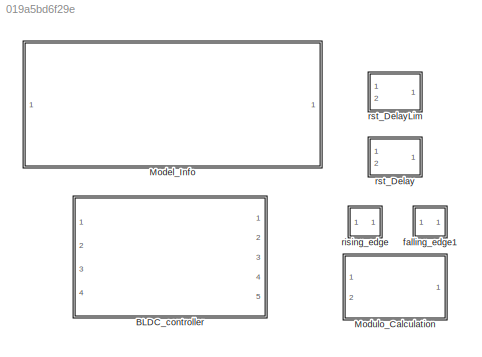
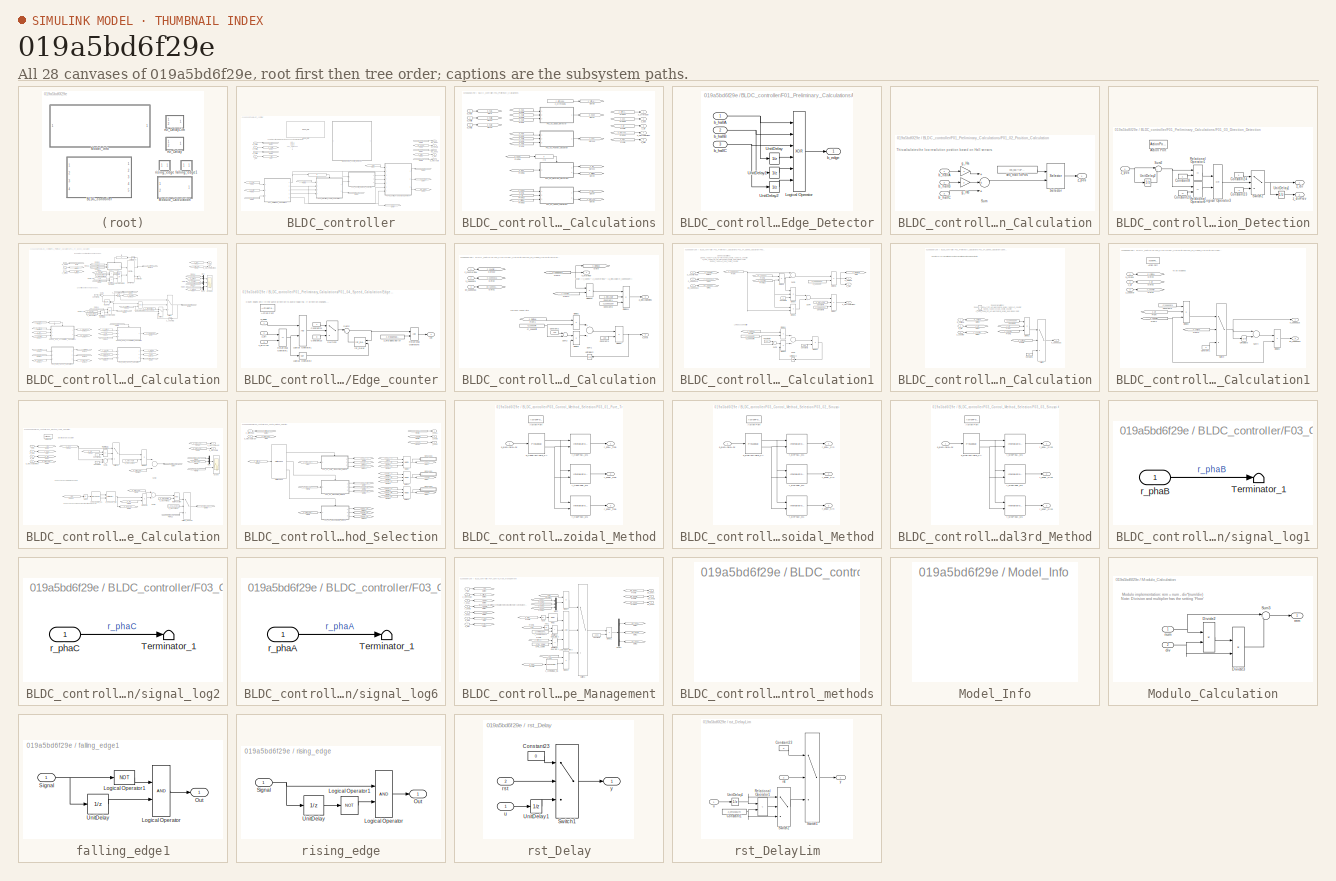
[diagram: thumbnail index - all 28 canvases of the model, root first then tree order]
MODEL slx_019a5bd6f29e
KIND library
CONFIG AbsTol = auto
CONFIG EnableMultiTasking = off
CONFIG FixedStep = auto
CONFIG MaxStep = auto
CONFIG MinStep = auto
CONFIG RelTol = 1e-3
CONFIG SampleTimeConstraint = Unconstrained
CONFIG Solver = VariableStepAuto
CONFIG SolverName = VariableStepAuto
CONFIG StartTime = 0.0
CONFIG StopTime = 10.0
BLOCK [SubSystem] BLDC_controller
  Ports = [4, 5]
  RequestExecContextInheritance = off
  SystemSampleTime = 1e-5
  Variant = off
BLOCK [Outport] BLDC_controller/DC_phaA
  IconDisplay = Port number
BLOCK [Outport] BLDC_controller/DC_phaB
  IconDisplay = Port number
  Port = 2
BLOCK [Outport] BLDC_controller/DC_phaC
  IconDisplay = Port number
  Port = 3
BLOCK [SubSystem] BLDC_controller/F01_Preliminary_Calculations
  Ports = [3, 5]
  RequestExecContextInheritance = off
  Variant = off
BLOCK [SubSystem] BLDC_controller/F01_Preliminary_Calculations/F01_01_Edge_Detector
  Ports = [3, 1]
  RequestExecContextInheritance = off
  Variant = off
BLOCK [Logic] BLDC_controller/F01_Preliminary_Calculations/F01_01_Edge_Detector/Logical Operator
  AllPortsSameDT = off
  Inputs = 6
  Operator = XOR
  OutDataTypeStr = boolean
  Ports = [6, 1]
BLOCK [UnitDelay] BLDC_controller/F01_Preliminary_Calculations/F01_01_Edge_Detector/UnitDelay
  InputProcessing = Elements as channels (sample based)
  SampleTime = -1
BLOCK [UnitDelay] BLDC_controller/F01_Preliminary_Calculations/F01_01_Edge_Detector/UnitDelay1
  InputProcessing = Elements as channels (sample based)
  SampleTime = -1
BLOCK [UnitDelay] BLDC_controller/F01_Preliminary_Calculations/F01_01_Edge_Detector/UnitDelay2
  InputProcessing = Elements as channels (sample based)
  SampleTime = -1
BLOCK [Outport] BLDC_controller/F01_Preliminary_Calculations/F01_01_Edge_Detector/b_edge 
  IconDisplay = Port number
  InitialOutput = 0
  OutputWhenDisabled = reset
BLOCK [Inport] BLDC_controller/F01_Preliminary_Calculations/F01_01_Edge_Detector/b_hallA
  IconDisplay = Port number
BLOCK [Inport] BLDC_controller/F01_Preliminary_Calculations/F01_01_Edge_Detector/b_hallB
  IconDisplay = Port number
  Port = 2
BLOCK [Inport] BLDC_controller/F01_Preliminary_Calculations/F01_01_Edge_Detector/b_hallC
  IconDisplay = Port number
  Port = 3
BLOCK [SubSystem] BLDC_controller/F01_Preliminary_Calculations/F01_02_Position_Calculation
  Ports = [3, 1]
  RequestExecContextInheritance = off
  Variant = off
BLOCK [Selector] BLDC_controller/F01_Preliminary_Calculations/F01_02_Position_Calculation/Selector
  IndexMode = Zero-based
  IndexOptions = Index vector (port)
  Indices = [1 3]
  InputPortWidth = length(vec_hallToPos)
  OutputSizes = 1
  Ports = [2, 1]
BLOCK [Sum] BLDC_controller/F01_Preliminary_Calculations/F01_02_Position_Calculation/Sum
  AccumDataTypeStr = Inherit: Same as first input
  InputSameDT = off
  Inputs = +++
  Ports = [3, 1]
  RndMeth = Simplest
  SaturateOnIntegerOverflow = off
BLOCK [Inport] BLDC_controller/F01_Preliminary_Calculations/F01_02_Position_Calculation/b_hallA
  IconDisplay = Port number
BLOCK [Inport] BLDC_controller/F01_Preliminary_Calculations/F01_02_Position_Calculation/b_hallB
  IconDisplay = Port number
  Port = 2
BLOCK [Inport] BLDC_controller/F01_Preliminary_Calculations/F01_02_Position_Calculation/b_hallC
  IconDisplay = Port number
  Port = 3
BLOCK [Gain] BLDC_controller/F01_Preliminary_Calculations/F01_02_Position_Calculation/g_Ha
  Gain = 4
  OutDataTypeStr = Inherit: Inherit via back propagation
  RndMeth = Zero
  SaturateOnIntegerOverflow = off
BLOCK [Gain] BLDC_controller/F01_Preliminary_Calculations/F01_02_Position_Calculation/g_Hb
  Gain = 2
  OutDataTypeStr = Inherit: Inherit via back propagation
  RndMeth = Simplest
  SaturateOnIntegerOverflow = off
BLOCK [Constant] BLDC_controller/F01_Preliminary_Calculations/F01_02_Position_Calculation/vec_hallToPos
  OutDataTypeStr = int8
  Value = vec_hallToPos
BLOCK [Outport] BLDC_controller/F01_Preliminary_Calculations/F01_02_Position_Calculation/z_pos 
  IconDisplay = Port number
  InitialOutput = 0
  OutputWhenDisabled = reset
BLOCK [SubSystem] BLDC_controller/F01_Preliminary_Calculations/F01_03_Direction_Detection
  Ports = [1, 2, 0, 0, 0, 0, 0, 1]
  RequestExecContextInheritance = off
  Variant = off
BLOCK [ActionPort] BLDC_controller/F01_Preliminary_Calculations/F01_03_Direction_Detection/Action Port
BLOCK [Constant] BLDC_controller/F01_Preliminary_Calculations/F01_03_Direction_Detection/Constant20
  OutDataTypeStr = Inherit: Inherit via back propagation
  Value = -5
BLOCK [Constant] BLDC_controller/F01_Preliminary_Calculations/F01_03_Direction_Detection/Constant23
  OutDataTypeStr = int8
  Value = -1
BLOCK [Constant] BLDC_controller/F01_Preliminary_Calculations/F01_03_Direction_Detection/Constant24
  OutDataTypeStr = int8
BLOCK [Constant] BLDC_controller/F01_Preliminary_Calculations/F01_03_Direction_Detection/Constant8
  OutDataTypeStr = Inherit: Inherit via back propagation
BLOCK [Logic] BLDC_controller/F01_Preliminary_Calculations/F01_03_Direction_Detection/Logical Operator3
  AllPortsSameDT = off
  Operator = OR
  OutDataTypeStr = boolean
  Ports = [2, 1]
BLOCK [RelationalOperator] BLDC_controller/F01_Preliminary_Calculations/F01_03_Direction_Detection/Relational Operator1
  InputSameDT = off
  Operator = ==
  OutDataTypeStr = boolean
  Ports = [2, 1]
  RndMeth = Simplest
BLOCK [RelationalOperator] BLDC_controller/F01_Preliminary_Calculations/F01_03_Direction_Detection/Relational Operator6
  InputSameDT = off
  Operator = ==
  OutDataTypeStr = boolean
  Ports = [2, 1]
  RndMeth = Simplest
BLOCK [Sum] BLDC_controller/F01_Preliminary_Calculations/F01_03_Direction_Detection/Sum2
  AccumDataTypeStr = Inherit: Same as first input
  IconShape = round
  Inputs = |+-
  Ports = [2, 1]
  RndMeth = Zero
  SaturateOnIntegerOverflow = off
BLOCK [Switch] BLDC_controller/F01_Preliminary_Calculations/F01_03_Direction_Detection/Switch2
  Criteria = u2 ~= 0
  InputSameDT = off
  OutDataTypeStr = Inherit: Inherit via back propagation
  RndMeth = Simplest
  SaturateOnIntegerOverflow = off
BLOCK [UnitDelay] BLDC_controller/F01_Preliminary_Calculations/F01_03_Direction_Detection/UnitDelay1
  InputProcessing = Elements as channels (sample based)
  SampleTime = -1
BLOCK [UnitDelay] BLDC_controller/F01_Preliminary_Calculations/F01_03_Direction_Detection/UnitDelay2
  InputProcessing = Elements as channels (sample based)
  SampleTime = -1
BLOCK [Outport] BLDC_controller/F01_Preliminary_Calculations/F01_03_Direction_Detection/z_dir
  IconDisplay = Port number
BLOCK [Outport] BLDC_controller/F01_Preliminary_Calculations/F01_03_Direction_Detection/z_dirPrev
  IconDisplay = Port number
  Port = 2
BLOCK [Inport] BLDC_controller/F01_Preliminary_Calculations/F01_03_Direction_Detection/z_pos
  IconDisplay = Port number
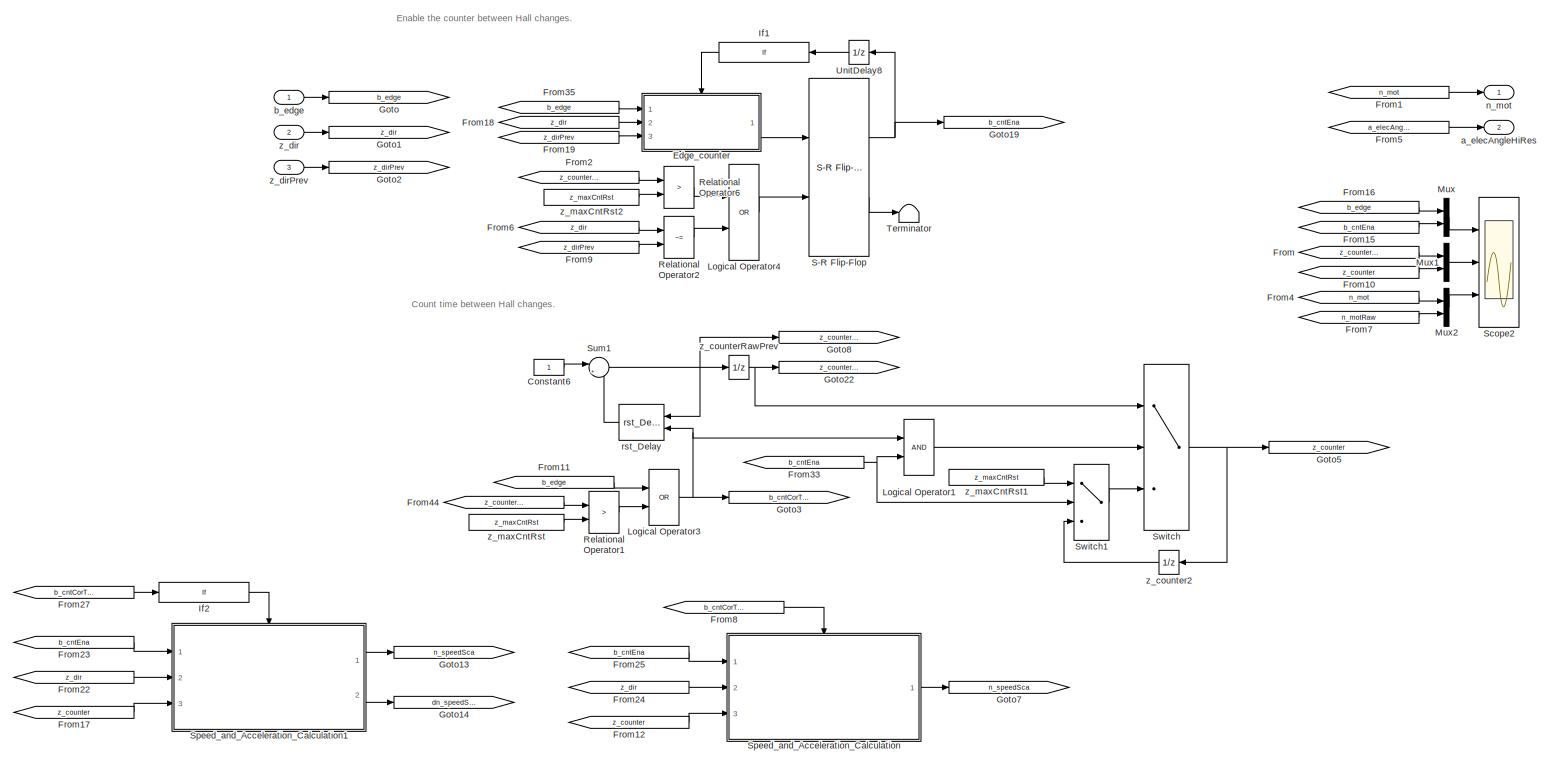
[diagram: BLDC_controller/F01_Preliminary_Calculations/F01_04_Speed_Calculation - part 1/2, most of the canvas]
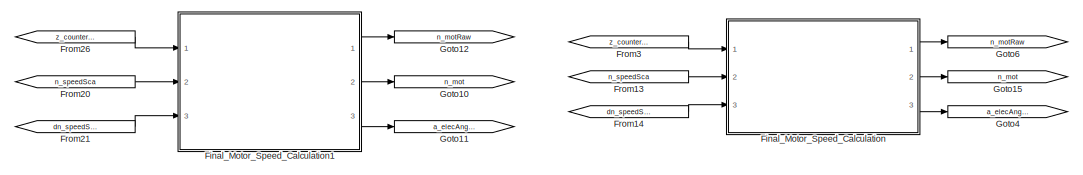
[diagram: BLDC_controller/F01_Preliminary_Calculations/F01_04_Speed_Calculation - part 2/2, bottom center region]
BLOCK [SubSystem] BLDC_controller/F01_Preliminary_Calculations/F01_04_Speed_Calculation
  Ports = [3, 2]
  RequestExecContextInheritance = off
  Variant = off
BLOCK [Constant] BLDC_controller/F01_Preliminary_Calculations/F01_04_Speed_Calculation/Constant6
  OutDataTypeStr = Inherit: Inherit via back propagation
BLOCK [SubSystem] BLDC_controller/F01_Preliminary_Calculations/F01_04_Speed_Calculation/Edge_counter
  Ports = [3, 1, 0, 0, 0, 0, 0, 1]
  RequestExecContextInheritance = off
  Variant = off
BLOCK [ActionPort] BLDC_controller/F01_Preliminary_Calculations/F01_04_Speed_Calculation/Edge_counter/Action Port
BLOCK [Constant] BLDC_controller/F01_Preliminary_Calculations/F01_04_Speed_Calculation/Edge_counter/Constant23
  OutDataTypeStr = uint8
  Value = 0
BLOCK [Constant] BLDC_controller/F01_Preliminary_Calculations/F01_04_Speed_Calculation/Edge_counter/Constant24
  OutDataTypeStr = uint8
BLOCK [Logic] BLDC_controller/F01_Preliminary_Calculations/F01_04_Speed_Calculation/Edge_counter/Logical Operator1
  AllPortsSameDT = off
  OutDataTypeStr = boolean
  Ports = [2, 1]
BLOCK [Logic] BLDC_controller/F01_Preliminary_Calculations/F01_04_Speed_Calculation/Edge_counter/Logical Operator2
  AllPortsSameDT = off
  Operator = NOT
  OutDataTypeStr = boolean
  Ports = [1, 1]
BLOCK [RelationalOperator] BLDC_controller/F01_Preliminary_Calculations/F01_04_Speed_Calculation/Edge_counter/Relational Operator1
  InputSameDT = off
  Operator = ==
  OutDataTypeStr = boolean
  Ports = [2, 1]
  RndMeth = Simplest
BLOCK [RelationalOperator] BLDC_controller/F01_Preliminary_Calculations/F01_04_Speed_Calculation/Edge_counter/Relational Operator5
  InputSameDT = off
  OutDataTypeStr = boolean
  Ports = [2, 1]
  RndMeth = Simplest
BLOCK [Sum] BLDC_controller/F01_Preliminary_Calculations/F01_04_Speed_Calculation/Edge_counter/Sum2
  AccumDataTypeStr = Inherit: Same as first input
  IconShape = round
  Inputs = |++
  Ports = [2, 1]
  SaturateOnIntegerOverflow = off
BLOCK [Switch] BLDC_controller/F01_Preliminary_Calculations/F01_04_Speed_Calculation/Edge_counter/Switch2
  Criteria = u2 ~= 0
  InputSameDT = off
  OutDataTypeStr = Inherit: Inherit via back propagation
  RndMeth = Simplest
  SaturateOnIntegerOverflow = off
BLOCK [Inport] BLDC_controller/F01_Preliminary_Calculations/F01_04_Speed_Calculation/Edge_counter/b_edge
  IconDisplay = Port number
BLOCK [Outport] BLDC_controller/F01_Preliminary_Calculations/F01_04_Speed_Calculation/Edge_counter/cnt
  IconDisplay = Port number
  InitialOutput = 0
  OutputWhenDisabled = reset
BLOCK [Reference] BLDC_controller/F01_Preliminary_Calculations/F01_04_Speed_Calculation/Edge_counter/rst_Delay  REF=BLDC_controller_Lib/rst_Delay
  Ports = [2, 1]
  SourceBlock = BLDC_controller_Lib/rst_Delay
  SourceType = SubSystem
BLOCK [Inport] BLDC_controller/F01_Preliminary_Calculations/F01_04_Speed_Calculation/Edge_counter/z_dir
  IconDisplay = Port number
  Port = 2
BLOCK [Inport] BLDC_controller/F01_Preliminary_Calculations/F01_04_Speed_Calculation/Edge_counter/z_dirPrev
  IconDisplay = Port number
  Port = 3
BLOCK [Constant] BLDC_controller/F01_Preliminary_Calculations/F01_04_Speed_Calculation/Edge_counter/z_nrEdgeSpdAcv
  OutDataTypeStr = Inherit: Inherit via back propagation
  Value = z_nrEdgeSpdAcv
BLOCK [SubSystem] BLDC_controller/F01_Preliminary_Calculations/F01_04_Speed_Calculation/Final_Motor_Speed_Calculation
  Commented = on
  Ports = [3, 3]
  RequestExecContextInheritance = off
  Variant = off
BLOCK [Constant] BLDC_controller/F01_Preliminary_Calculations/F01_04_Speed_Calculation/Final_Motor_Speed_Calculation/Constant1
  OutDataTypeStr = Inherit: Inherit via back propagation
  Value = a_elecAngle
BLOCK [Constant] BLDC_controller/F01_Preliminary_Calculations/F01_04_Speed_Calculation/Final_Motor_Speed_Calculation/Constant2
  OutDataTypeStr = Inherit: Inherit via back propagation
  Value = 100
BLOCK [Constant] BLDC_controller/F01_Preliminary_Calculations/F01_04_Speed_Calculation/Final_Motor_Speed_Calculation/Constant3
  OutDataTypeStr = Inherit: Inherit via back propagation
  Value = 100
BLOCK [Constant] BLDC_controller/F01_Preliminary_Calculations/F01_04_Speed_Calculation/Final_Motor_Speed_Calculation/Constant8
  OutDataTypeStr = Inherit: Inherit via back propagation
  Value = cf_speedCoef
BLOCK [Product] BLDC_controller/F01_Preliminary_Calculations/F01_04_Speed_Calculation/Final_Motor_Speed_Calculation/Divide1
  InputSameDT = off
  Inputs = **
  Ports = [2, 1]
  RndMeth = Simplest
  SaturateOnIntegerOverflow = off
BLOCK [Product] BLDC_controller/F01_Preliminary_Calculations/F01_04_Speed_Calculation/Final_Motor_Speed_Calculation/Divide10
  InputSameDT = off
  Inputs = **
  Ports = [2, 1]
  RndMeth = Simplest
  SaturateOnIntegerOverflow = off
BLOCK [Product] BLDC_controller/F01_Preliminary_Calculations/F01_04_Speed_Calculation/Final_Motor_Speed_Calculation/Divide11
  InputSameDT = off
  Inputs = **/
  Ports = [3, 1]
  RndMeth = Simplest
BLOCK [Product] BLDC_controller/F01_Preliminary_Calculations/F01_04_Speed_Calculation/Final_Motor_Speed_Calculation/Divide2
  InputSameDT = off
  Inputs = */
  Ports = [2, 1]
  RndMeth = Simplest
  SaturateOnIntegerOverflow = off
BLOCK [Product] BLDC_controller/F01_Preliminary_Calculations/F01_04_Speed_Calculation/Final_Motor_Speed_Calculation/Divide3
  InputSameDT = off
  Inputs = **
  Ports = [2, 1]
  RndMeth = Simplest
  SaturateOnIntegerOverflow = off
BLOCK [From] BLDC_controller/F01_Preliminary_Calculations/F01_04_Speed_Calculation/Final_Motor_Speed_Calculation/From1
  GotoTag = n_motRaw
BLOCK [From] BLDC_controller/F01_Preliminary_Calculations/F01_04_Speed_Calculation/Final_Motor_Speed_Calculation/From3
  GotoTag = n_speedSca
BLOCK [From] BLDC_controller/F01_Preliminary_Calculations/F01_04_Speed_Calculation/Final_Motor_Speed_Calculation/From4
  GotoTag = z_counterRaw
BLOCK [Goto] BLDC_controller/F01_Preliminary_Calculations/F01_04_Speed_Calculation/Final_Motor_Speed_Calculation/Goto
  GotoTag = n_motRaw
BLOCK [Goto] BLDC_controller/F01_Preliminary_Calculations/F01_04_Speed_Calculation/Final_Motor_Speed_Calculation/Goto1
  GotoTag = dn_speedSca
BLOCK [Goto] BLDC_controller/F01_Preliminary_Calculations/F01_04_Speed_Calculation/Final_Motor_Speed_Calculation/Goto2
  GotoTag = n_speedSca
BLOCK [Goto] BLDC_controller/F01_Preliminary_Calculations/F01_04_Speed_Calculation/Final_Motor_Speed_Calculation/Goto22
  GotoTag = z_counterRaw
BLOCK [Sum] BLDC_controller/F01_Preliminary_Calculations/F01_04_Speed_Calculation/Final_Motor_Speed_Calculation/Sum1
  AccumDataTypeStr = Inherit: Same as first input
  Ports = [2, 1]
  RndMeth = Simplest
  SaturateOnIntegerOverflow = off
BLOCK [Sum] BLDC_controller/F01_Preliminary_Calculations/F01_04_Speed_Calculation/Final_Motor_Speed_Calculation/Sum2
  AccumDataTypeStr = Inherit: Same as first input
  Inputs = +-
  Ports = [2, 1]
  RndMeth = Simplest
  SaturateOnIntegerOverflow = off
BLOCK [UnitDelay] BLDC_controller/F01_Preliminary_Calculations/F01_04_Speed_Calculation/Final_Motor_Speed_Calculation/UnitDelay2
  InputProcessing = Elements as channels (sample based)
  SampleTime = -1
BLOCK [Outport] BLDC_controller/F01_Preliminary_Calculations/F01_04_Speed_Calculation/Final_Motor_Speed_Calculation/a_elecAngleHiRes
  IconDisplay = Port number
  Port = 3
BLOCK [Constant] BLDC_controller/F01_Preliminary_Calculations/F01_04_Speed_Calculation/Final_Motor_Speed_Calculation/cf_speedFilt
  OutDataTypeStr = int32
  Value = cf_speedFilt
BLOCK [Inport] BLDC_controller/F01_Preliminary_Calculations/F01_04_Speed_Calculation/Final_Motor_Speed_Calculation/dn_speedSca
  IconDisplay = Port number
  Port = 3
BLOCK [Outport] BLDC_controller/F01_Preliminary_Calculations/F01_04_Speed_Calculation/Final_Motor_Speed_Calculation/n_mot
  IconDisplay = Port number
  Port = 2
BLOCK [Outport] BLDC_controller/F01_Preliminary_Calculations/F01_04_Speed_Calculation/Final_Motor_Speed_Calculation/n_motRaw
  IconDisplay = Port number
BLOCK [Inport] BLDC_controller/F01_Preliminary_Calculations/F01_04_Speed_Calculation/Final_Motor_Speed_Calculation/n_speedSca
  IconDisplay = Port number
  Port = 2
BLOCK [Inport] BLDC_controller/F01_Preliminary_Calculations/F01_04_Speed_Calculation/Final_Motor_Speed_Calculation/z_counterRaw
  IconDisplay = Port number
BLOCK [SubSystem] BLDC_controller/F01_Preliminary_Calculations/F01_04_Speed_Calculation/Final_Motor_Speed_Calculation1
  Ports = [3, 3]
  RequestExecContextInheritance = off
  Variant = off
BLOCK [Constant] BLDC_controller/F01_Preliminary_Calculations/F01_04_Speed_Calculation/Final_Motor_Speed_Calculation1/Constant2
  Commented = on
  OutDataTypeStr = Inherit: Inherit via back propagation
  Value = 100
BLOCK [Constant] BLDC_controller/F01_Preliminary_Calculations/F01_04_Speed_Calculation/Final_Motor_Speed_Calculation1/Constant3
  Commented = on
  OutDataTypeStr = Inherit: Inherit via back propagation
  Value = 100
BLOCK [Constant] BLDC_controller/F01_Preliminary_Calculations/F01_04_Speed_Calculation/Final_Motor_Speed_Calculation1/Constant4
  OutDataTypeStr = Inherit: Inherit via back propagation
  Value = a_elecAngle
BLOCK [Constant] BLDC_controller/F01_Preliminary_Calculations/F01_04_Speed_Calculation/Final_Motor_Speed_Calculation1/Constant5
  OutDataTypeStr = Inherit: Inherit via back propagation
  Value = 2
BLOCK [Constant] BLDC_controller/F01_Preliminary_Calculations/F01_04_Speed_Calculation/Final_Motor_Speed_Calculation1/Constant6
  OutDataTypeStr = Inherit: Inherit via back propagation
  Value = cf_speedSca
BLOCK [Product] BLDC_controller/F01_Preliminary_Calculations/F01_04_Speed_Calculation/Final_Motor_Speed_Calculation1/Divide1
  Commented = on
  InputSameDT = off
  Inputs = **
  Ports = [2, 1]
  RndMeth = Simplest
  SaturateOnIntegerOverflow = off
BLOCK [Product] BLDC_controller/F01_Preliminary_Calculations/F01_04_Speed_Calculation/Final_Motor_Speed_Calculation1/Divide2
  Commented = on
  InputSameDT = off
  Inputs = */
  Ports = [2, 1]
  RndMeth = Simplest
  SaturateOnIntegerOverflow = off
BLOCK [Product] BLDC_controller/F01_Preliminary_Calculations/F01_04_Speed_Calculation/Final_Motor_Speed_Calculation1/Divide3
  Commented = on
  InputSameDT = off
  Inputs = **
  Ports = [2, 1]
  RndMeth = Simplest
  SaturateOnIntegerOverflow = off
BLOCK [Product] BLDC_controller/F01_Preliminary_Calculations/F01_04_Speed_Calculation/Final_Motor_Speed_Calculation1/Divide5
  InputSameDT = off
  Inputs = **/
  Ports = [3, 1]
  RndMeth = Simplest
  SaturateOnIntegerOverflow = off
BLOCK [Product] BLDC_controller/F01_Preliminary_Calculations/F01_04_Speed_Calculation/Final_Motor_Speed_Calculation1/Divide6
  InputSameDT = off
  Inputs = **
  Ports = [2, 1]
  RndMeth = Simplest
  SaturateOnIntegerOverflow = off
BLOCK [Product] BLDC_controller/F01_Preliminary_Calculations/F01_04_Speed_Calculation/Final_Motor_Speed_Calculation1/Divide7
  InputSameDT = off
  Inputs = **/
  Ports = [3, 1]
  RndMeth = Simplest
BLOCK [Product] BLDC_controller/F01_Preliminary_Calculations/F01_04_Speed_Calculation/Final_Motor_Speed_Calculation1/Divide8
  InputSameDT = off
  Inputs = */
  Ports = [2, 1]
  RndMeth = Simplest
  SaturateOnIntegerOverflow = off
BLOCK [Product] BLDC_controller/F01_Preliminary_Calculations/F01_04_Speed_Calculation/Final_Motor_Speed_Calculation1/Divide9
  InputSameDT = off
  Inputs = **
  Ports = [2, 1]
  RndMeth = Simplest
  SaturateOnIntegerOverflow = off
BLOCK [From] BLDC_controller/F01_Preliminary_Calculations/F01_04_Speed_Calculation/Final_Motor_Speed_Calculation1/From
  GotoTag = n_speedSca
BLOCK [From] BLDC_controller/F01_Preliminary_Calculations/F01_04_Speed_Calculation/Final_Motor_Speed_Calculation1/From1
  Commented = on
  GotoTag = n_motRaw
BLOCK [From] BLDC_controller/F01_Preliminary_Calculations/F01_04_Speed_Calculation/Final_Motor_Speed_Calculation1/From2
  GotoTag = dn_speedSca
BLOCK [From] BLDC_controller/F01_Preliminary_Calculations/F01_04_Speed_Calculation/Final_Motor_Speed_Calculation1/From23
  GotoTag = z_counterRaw
BLOCK [Goto] BLDC_controller/F01_Preliminary_Calculations/F01_04_Speed_Calculation/Final_Motor_Speed_Calculation1/Goto
  GotoTag = n_motRaw
BLOCK [Goto] BLDC_controller/F01_Preliminary_Calculations/F01_04_Speed_Calculation/Final_Motor_Speed_Calculation1/Goto1
  GotoTag = dn_speedSca
BLOCK [Goto] BLDC_controller/F01_Preliminary_Calculations/F01_04_Speed_Calculation/Final_Motor_Speed_Calculation1/Goto2
  GotoTag = n_speedSca
BLOCK [Goto] BLDC_controller/F01_Preliminary_Calculations/F01_04_Speed_Calculation/Final_Motor_Speed_Calculation1/Goto22
  GotoTag = z_counterRaw
BLOCK [Sum] BLDC_controller/F01_Preliminary_Calculations/F01_04_Speed_Calculation/Final_Motor_Speed_Calculation1/Sum1
  AccumDataTypeStr = Inherit: Same as first input
  Commented = on
  Ports = [2, 1]
  RndMeth = Simplest
  SaturateOnIntegerOverflow = off
BLOCK [Sum] BLDC_controller/F01_Preliminary_Calculations/F01_04_Speed_Calculation/Final_Motor_Speed_Calculation1/Sum2
  AccumDataTypeStr = Inherit: Same as first input
  Commented = on
  Inputs = +-
  Ports = [2, 1]
  RndMeth = Simplest
  SaturateOnIntegerOverflow = off
BLOCK [Sum] BLDC_controller/F01_Preliminary_Calculations/F01_04_Speed_Calculation/Final_Motor_Speed_Calculation1/Sum3
  AccumDataTypeStr = Inherit: Same as first input
  Ports = [2, 1]
  RndMeth = Simplest
  SaturateOnIntegerOverflow = off
BLOCK [Sum] BLDC_controller/F01_Preliminary_Calculations/F01_04_Speed_Calculation/Final_Motor_Speed_Calculation1/Sum4
  AccumDataTypeStr = Inherit: Same as first input
  Ports = [2, 1]
  RndMeth = Simplest
  SaturateOnIntegerOverflow = off
BLOCK [UnitDelay] BLDC_controller/F01_Preliminary_Calculations/F01_04_Speed_Calculation/Final_Motor_Speed_Calculation1/UnitDelay2
  Commented = on
  InputProcessing = Elements as channels (sample based)
  SampleTime = -1
BLOCK [Outport] BLDC_controller/F01_Preliminary_Calculations/F01_04_Speed_Calculation/Final_Motor_Speed_Calculation1/a_elecAngleHiRes
  IconDisplay = Port number
  Port = 3
BLOCK [Constant] BLDC_controller/F01_Preliminary_Calculations/F01_04_Speed_Calculation/Final_Motor_Speed_Calculation1/cf_spdCoef
  OutDataTypeStr = int32
  Value = cf_speedCoef
BLOCK [Constant] BLDC_controller/F01_Preliminary_Calculations/F01_04_Speed_Calculation/Final_Motor_Speed_Calculation1/cf_speedFilt
  Commented = on
  OutDataTypeStr = int32
  Value = cf_speedFilt
BLOCK [Inport] BLDC_controller/F01_Preliminary_Calculations/F01_04_Speed_Calculation/Final_Motor_Speed_Calculation1/dn_speedSca
  IconDisplay = Port number
  Port = 3
BLOCK [Outport] BLDC_controller/F01_Preliminary_Calculations/F01_04_Speed_Calculation/Final_Motor_Speed_Calculation1/n_mot
  IconDisplay = Port number
  Port = 2
BLOCK [Outport] BLDC_controller/F01_Preliminary_Calculations/F01_04_Speed_Calculation/Final_Motor_Speed_Calculation1/n_motRaw
  IconDisplay = Port number
BLOCK [Inport] BLDC_controller/F01_Preliminary_Calculations/F01_04_Speed_Calculation/Final_Motor_Speed_Calculation1/n_speedSca
  IconDisplay = Port number
  Port = 2
BLOCK [Inport] BLDC_controller/F01_Preliminary_Calculations/F01_04_Speed_Calculation/Final_Motor_Speed_Calculation1/z_counterRaw
  IconDisplay = Port number
BLOCK [From] BLDC_controller/F01_Preliminary_Calculations/F01_04_Speed_Calculation/From
  Commented = on
  GotoTag = z_counterRaw
BLOCK [From] BLDC_controller/F01_Preliminary_Calculations/F01_04_Speed_Calculation/From1
  GotoTag = n_mot
BLOCK [From] BLDC_controller/F01_Preliminary_Calculations/F01_04_Speed_Calculation/From10
  Commented = on
  GotoTag = z_counter
BLOCK [From] BLDC_controller/F01_Preliminary_Calculations/F01_04_Speed_Calculation/From11
  GotoTag = b_edge
BLOCK [From] BLDC_controller/F01_Preliminary_Calculations/F01_04_Speed_Calculation/From12
  Commented = on
  GotoTag = z_counter
BLOCK [From] BLDC_controller/F01_Preliminary_Calculations/F01_04_Speed_Calculation/From13
  Commented = on
  GotoTag = n_speedSca
BLOCK [From] BLDC_controller/F01_Preliminary_Calculations/F01_04_Speed_Calculation/From14
  Commented = on
  GotoTag = dn_speedSca
BLOCK [From] BLDC_controller/F01_Preliminary_Calculations/F01_04_Speed_Calculation/From15
  Commented = on
  GotoTag = b_cntEna
BLOCK [From] BLDC_controller/F01_Preliminary_Calculations/F01_04_Speed_Calculation/From16
  Commented = on
  GotoTag = b_edge
BLOCK [From] BLDC_controller/F01_Preliminary_Calculations/F01_04_Speed_Calculation/From17
  GotoTag = z_counter
BLOCK [From] BLDC_controller/F01_Preliminary_Calculations/F01_04_Speed_Calculation/From18
  GotoTag = z_dir
BLOCK [From] BLDC_controller/F01_Preliminary_Calculations/F01_04_Speed_Calculation/From19
  GotoTag = z_dirPrev
BLOCK [From] BLDC_controller/F01_Preliminary_Calculations/F01_04_Speed_Calculation/From2
  GotoTag = z_counterRawPrev
BLOCK [From] BLDC_controller/F01_Preliminary_Calculations/F01_04_Speed_Calculation/From20
  GotoTag = n_speedSca
BLOCK [From] BLDC_controller/F01_Preliminary_Calculations/F01_04_Speed_Calculation/From21
  GotoTag = dn_speedSca
BLOCK [From] BLDC_controller/F01_Preliminary_Calculations/F01_04_Speed_Calculation/From22
  GotoTag = z_dir
BLOCK [From] BLDC_controller/F01_Preliminary_Calculations/F01_04_Speed_Calculation/From23
  GotoTag = b_cntEna
BLOCK [From] BLDC_controller/F01_Preliminary_Calculations/F01_04_Speed_Calculation/From24
  Commented = on
  GotoTag = z_dir
BLOCK [From] BLDC_controller/F01_Preliminary_Calculations/F01_04_Speed_Calculation/From25
  Commented = on
  GotoTag = b_cntEna
BLOCK [From] BLDC_controller/F01_Preliminary_Calculations/F01_04_Speed_Calculation/From26
  GotoTag = z_counterRaw
BLOCK [From] BLDC_controller/F01_Preliminary_Calculations/F01_04_Speed_Calculation/From27
  GotoTag = b_cntCorTrig
BLOCK [From] BLDC_controller/F01_Preliminary_Calculations/F01_04_Speed_Calculation/From3
  Commented = on
  GotoTag = z_counterRaw
BLOCK [From] BLDC_controller/F01_Preliminary_Calculations/F01_04_Speed_Calculation/From33
  GotoTag = b_cntEna
BLOCK [From] BLDC_controller/F01_Preliminary_Calculations/F01_04_Speed_Calculation/From35
  GotoTag = b_edge
BLOCK [From] BLDC_controller/F01_Preliminary_Calculations/F01_04_Speed_Calculation/From4
  Commented = on
  GotoTag = n_mot
BLOCK [From] BLDC_controller/F01_Preliminary_Calculations/F01_04_Speed_Calculation/From44
  GotoTag = z_counterRawPrev
BLOCK [From] BLDC_controller/F01_Preliminary_Calculations/F01_04_Speed_Calculation/From5
  GotoTag = a_elecAngleHiRes
BLOCK [From] BLDC_controller/F01_Preliminary_Calculations/F01_04_Speed_Calculation/From6
  GotoTag = z_dir
BLOCK [From] BLDC_controller/F01_Preliminary_Calculations/F01_04_Speed_Calculation/From7
  Commented = on
  GotoTag = n_motRaw
BLOCK [From] BLDC_controller/F01_Preliminary_Calculations/F01_04_Speed_Calculation/From8
  Commented = on
  GotoTag = b_cntCorTrig
BLOCK [From] BLDC_controller/F01_Preliminary_Calculations/F01_04_Speed_Calculation/From9
  GotoTag = z_dirPrev
BLOCK [Goto] BLDC_controller/F01_Preliminary_Calculations/F01_04_Speed_Calculation/Goto
  GotoTag = b_edge
BLOCK [Goto] BLDC_controller/F01_Preliminary_Calculations/F01_04_Speed_Calculation/Goto1
  GotoTag = z_dir
BLOCK [Goto] BLDC_controller/F01_Preliminary_Calculations/F01_04_Speed_Calculation/Goto10
  GotoTag = n_mot
BLOCK [Goto] BLDC_controller/F01_Preliminary_Calculations/F01_04_Speed_Calculation/Goto11
  GotoTag = a_elecAngleHiRes
BLOCK [Goto] BLDC_controller/F01_Preliminary_Calculations/F01_04_Speed_Calculation/Goto12
  GotoTag = n_motRaw
BLOCK [Goto] BLDC_controller/F01_Preliminary_Calculations/F01_04_Speed_Calculation/Goto13
  GotoTag = n_speedSca
BLOCK [Goto] BLDC_controller/F01_Preliminary_Calculations/F01_04_Speed_Calculation/Goto14
  GotoTag = dn_speedSca
BLOCK [Goto] BLDC_controller/F01_Preliminary_Calculations/F01_04_Speed_Calculation/Goto15
  Commented = on
  GotoTag = n_mot
BLOCK [Goto] BLDC_controller/F01_Preliminary_Calculations/F01_04_Speed_Calculation/Goto19
  GotoTag = b_cntEna
BLOCK [Goto] BLDC_controller/F01_Preliminary_Calculations/F01_04_Speed_Calculation/Goto2
  GotoTag = z_dirPrev
BLOCK [Goto] BLDC_controller/F01_Preliminary_Calculations/F01_04_Speed_Calculation/Goto22
  GotoTag = z_counterRawPrev
BLOCK [Goto] BLDC_controller/F01_Preliminary_Calculations/F01_04_Speed_Calculation/Goto3
  GotoTag = b_cntCorTrig
BLOCK [Goto] BLDC_controller/F01_Preliminary_Calculations/F01_04_Speed_Calculation/Goto4
  Commented = on
  GotoTag = a_elecAngleHiRes
BLOCK [Goto] BLDC_controller/F01_Preliminary_Calculations/F01_04_Speed_Calculation/Goto5
  GotoTag = z_counter
BLOCK [Goto] BLDC_controller/F01_Preliminary_Calculations/F01_04_Speed_Calculation/Goto6
  Commented = on
  GotoTag = n_motRaw
BLOCK [Goto] BLDC_controller/F01_Preliminary_Calculations/F01_04_Speed_Calculation/Goto7
  Commented = on
  GotoTag = n_speedSca
BLOCK [Goto] BLDC_controller/F01_Preliminary_Calculations/F01_04_Speed_Calculation/Goto8
  GotoTag = z_counterRaw
BLOCK [If] BLDC_controller/F01_Preliminary_Calculations/F01_04_Speed_Calculation/If1
  IfExpression = u1 == 0
  Ports = [1, 1]
  ShowElse = off
BLOCK [If] BLDC_controller/F01_Preliminary_Calculations/F01_04_Speed_Calculation/If2
  IfExpression = u1 ~= 0
  Ports = [1, 1]
  ShowElse = off
BLOCK [Logic] BLDC_controller/F01_Preliminary_Calculations/F01_04_Speed_Calculation/Logical Operator1
  AllPortsSameDT = off
  OutDataTypeStr = boolean
  Ports = [2, 1]
BLOCK [Logic] BLDC_controller/F01_Preliminary_Calculations/F01_04_Speed_Calculation/Logical Operator3
  AllPortsSameDT = off
  Operator = OR
  OutDataTypeStr = boolean
  Ports = [2, 1]
BLOCK [Logic] BLDC_controller/F01_Preliminary_Calculations/F01_04_Speed_Calculation/Logical Operator4
  AllPortsSameDT = off
  Operator = OR
  OutDataTypeStr = boolean
  Ports = [2, 1]
BLOCK [Mux] BLDC_controller/F01_Preliminary_Calculations/F01_04_Speed_Calculation/Mux
  Commented = on
  DisplayOption = bar
  Inputs = 2
  Ports = [2, 1]
BLOCK [Mux] BLDC_controller/F01_Preliminary_Calculations/F01_04_Speed_Calculation/Mux1
  Commented = on
  DisplayOption = bar
  Inputs = 2
  Ports = [2, 1]
BLOCK [Mux] BLDC_controller/F01_Preliminary_Calculations/F01_04_Speed_Calculation/Mux2
  Commented = on
  DisplayOption = bar
  Inputs = 2
  Ports = [2, 1]
BLOCK [RelationalOperator] BLDC_controller/F01_Preliminary_Calculations/F01_04_Speed_Calculation/Relational Operator1
  InputSameDT = off
  Operator = >
  OutDataTypeStr = boolean
  Ports = [2, 1]
  RndMeth = Simplest
BLOCK [RelationalOperator] BLDC_controller/F01_Preliminary_Calculations/F01_04_Speed_Calculation/Relational Operator2
  InputSameDT = off
  Operator = ~=
  OutDataTypeStr = boolean
  Ports = [2, 1]
  RndMeth = Simplest
BLOCK [RelationalOperator] BLDC_controller/F01_Preliminary_Calculations/F01_04_Speed_Calculation/Relational Operator6
  InputSameDT = off
  Operator = >
  OutDataTypeStr = boolean
  Ports = [2, 1]
  RndMeth = Simplest
BLOCK [Reference] BLDC_controller/F01_Preliminary_Calculations/F01_04_Speed_Calculation/S-R Flip-Flop  REF=simulink_extras/Flip Flops/S-R
Flip-Flop
  Ports = [2, 2]
  SourceBlock = simulink_extras/Flip Flops/S-R\nFlip-Flop
  SourceProductBaseCode = SL
  SourceProductName = Simulink
  SourceType = SRFlipFlop
BLOCK [Scope] BLDC_controller/F01_Preliminary_Calculations/F01_04_Speed_Calculation/Scope2
  Commented = on
  NumInputPorts = 3
  Ports = [3]
  ScopeSpecificationString = Simulink.scopes.TimeScopeBlockCfg('CurrentConfiguration', extmgr.ConfigurationSet(extmgr.Configuration('Core','General UI',true),extmgr.Configuration('Core','Source UI',true),extmgr.Configuration('Sources','WiredSimulink',true,'DataLoggingVariableName','ScopeData1'),extmgr.Configuration('Visuals','Time Domain',true,'SerializedDisplays',{struct('MinYLimReal','-0.125','MaxYLimReal','1.125','YLabelRe...<+3185ch>
BLOCK [SubSystem] BLDC_controller/F01_Preliminary_Calculations/F01_04_Speed_Calculation/Speed_and_Acceleration_Calculation
  Commented = on
  Ports = [3, 1, 0, 1]
  RequestExecContextInheritance = off
  Variant = off
BLOCK [Constant] BLDC_controller/F01_Preliminary_Calculations/F01_04_Speed_Calculation/Speed_and_Acceleration_Calculation/Constant1
  OutDataTypeStr = Inherit: Inherit via back propagation
  Value = 0
BLOCK [Constant] BLDC_controller/F01_Preliminary_Calculations/F01_04_Speed_Calculation/Speed_and_Acceleration_Calculation/Constant3
  OutDataTypeStr = Inherit: Inherit via back propagation
  Value = cf_speedCoef
BLOCK [Product] BLDC_controller/F01_Preliminary_Calculations/F01_04_Speed_Calculation/Speed_and_Acceleration_Calculation/Divide2
  InputSameDT = off
  Inputs = **/
  Ports = [3, 1]
  RndMeth = Simplest
  SaturateOnIntegerOverflow = off
BLOCK [From] BLDC_controller/F01_Preliminary_Calculations/F01_04_Speed_Calculation/Speed_and_Acceleration_Calculation/From
  GotoTag = z_dir
BLOCK [From] BLDC_controller/F01_Preliminary_Calculations/F01_04_Speed_Calculation/Speed_and_Acceleration_Calculation/From1
  GotoTag = z_counter
BLOCK [From] BLDC_controller/F01_Preliminary_Calculations/F01_04_Speed_Calculation/Speed_and_Acceleration_Calculation/From2
  GotoTag = b_cntEna
BLOCK [Goto] BLDC_controller/F01_Preliminary_Calculations/F01_04_Speed_Calculation/Speed_and_Acceleration_Calculation/Goto1
  GotoTag = z_counter
BLOCK [Goto] BLDC_controller/F01_Preliminary_Calculations/F01_04_Speed_Calculation/Speed_and_Acceleration_Calculation/Goto2
  GotoTag = z_dir
BLOCK [Goto] BLDC_controller/F01_Preliminary_Calculations/F01_04_Speed_Calculation/Speed_and_Acceleration_Calculation/Goto3
  GotoTag = b_cntEna
BLOCK [Switch] BLDC_controller/F01_Preliminary_Calculations/F01_04_Speed_Calculation/Speed_and_Acceleration_Calculation/Switch
  Criteria = u2 ~= 0
  InputSameDT = off
  OutDataTypeStr = Inherit: Inherit via back propagation
  RndMeth = Simplest
  SaturateOnIntegerOverflow = off
BLOCK [TriggerPort] BLDC_controller/F01_Preliminary_Calculations/F01_04_Speed_Calculation/Speed_and_Acceleration_Calculation/Trigger
  PortDimensions = 1
  Ports = []
  StatesWhenEnabling = held
  VariantControl = Variant
  ZeroCross = off
BLOCK [Inport] BLDC_controller/F01_Preliminary_Calculations/F01_04_Speed_Calculation/Speed_and_Acceleration_Calculation/b_cntEna
  IconDisplay = Port number
BLOCK [Outport] BLDC_controller/F01_Preliminary_Calculations/F01_04_Speed_Calculation/Speed_and_Acceleration_Calculation/n_speedSca
  IconDisplay = Port number
BLOCK [Inport] BLDC_controller/F01_Preliminary_Calculations/F01_04_Speed_Calculation/Speed_and_Acceleration_Calculation/z_counter
  IconDisplay = Port number
  Port = 3
BLOCK [Inport] BLDC_controller/F01_Preliminary_Calculations/F01_04_Speed_Calculation/Speed_and_Acceleration_Calculation/z_dir
  IconDisplay = Port number
  Port = 2
BLOCK [SubSystem] BLDC_controller/F01_Preliminary_Calculations/F01_04_Speed_Calculation/Speed_and_Acceleration_Calculation1
  Ports = [3, 2, 0, 0, 0, 0, 0, 1]
  RequestExecContextInheritance = off
  Variant = off
BLOCK [ActionPort] BLDC_controller/F01_Preliminary_Calculations/F01_04_Speed_Calculation/Speed_and_Acceleration_Calculation1/Action Port
BLOCK [Constant] BLDC_controller/F01_Preliminary_Calculations/F01_04_Speed_Calculation/Speed_and_Acceleration_Calculation1/Constant1
  OutDataTypeStr = Inherit: Inherit via back propagation
  Value = 0
BLOCK [Constant] BLDC_controller/F01_Preliminary_Calculations/F01_04_Speed_Calculation/Speed_and_Acceleration_Calculation1/Constant3
  OutDataTypeStr = Inherit: Inherit via back propagation
  Value = cf_speedSca
BLOCK [Product] BLDC_controller/F01_Preliminary_Calculations/F01_04_Speed_Calculation/Speed_and_Acceleration_Calculation1/Divide2
  InputSameDT = off
  Inputs = **/
  Ports = [3, 1]
  RndMeth = Simplest
  SaturateOnIntegerOverflow = off
BLOCK [Product] BLDC_controller/F01_Preliminary_Calculations/F01_04_Speed_Calculation/Speed_and_Acceleration_Calculation1/Divide3
  InputSameDT = off
  Inputs = */
  Ports = [2, 1]
  RndMeth = Simplest
  SaturateOnIntegerOverflow = off
BLOCK [From] BLDC_controller/F01_Preliminary_Calculations/F01_04_Speed_Calculation/Speed_and_Acceleration_Calculation1/From
  GotoTag = z_dir
BLOCK [From] BLDC_controller/F01_Preliminary_Calculations/F01_04_Speed_Calculation/Speed_and_Acceleration_Calculation1/From1
  GotoTag = z_counter
BLOCK [From] BLDC_controller/F01_Preliminary_Calculations/F01_04_Speed_Calculation/Speed_and_Acceleration_Calculation1/From2
  GotoTag = b_cntEna
BLOCK [Goto] BLDC_controller/F01_Preliminary_Calculations/F01_04_Speed_Calculation/Speed_and_Acceleration_Calculation1/Goto1
  GotoTag = z_counter
BLOCK [Goto] BLDC_controller/F01_Preliminary_Calculations/F01_04_Speed_Calculation/Speed_and_Acceleration_Calculation1/Goto2
  GotoTag = z_dir
BLOCK [Goto] BLDC_controller/F01_Preliminary_Calculations/F01_04_Speed_Calculation/Speed_and_Acceleration_Calculation1/Goto3
  GotoTag = b_cntEna
BLOCK [Sum] BLDC_controller/F01_Preliminary_Calculations/F01_04_Speed_Calculation/Speed_and_Acceleration_Calculation1/Sum4
  AccumDataTypeStr = Inherit: Same as first input
  Inputs = +-
  Ports = [2, 1]
  RndMeth = Simplest
  SaturateOnIntegerOverflow = off
BLOCK [Switch] BLDC_controller/F01_Preliminary_Calculations/F01_04_Speed_Calculation/Speed_and_Acceleration_Calculation1/Switch
  Criteria = u2 ~= 0
  InputSameDT = off
  OutDataTypeStr = Inherit: Inherit via back propagation
  RndMeth = Simplest
  SaturateOnIntegerOverflow = off
BLOCK [UnitDelay] BLDC_controller/F01_Preliminary_Calculations/F01_04_Speed_Calculation/Speed_and_Acceleration_Calculation1/UnitDelay5
  InputProcessing = Elements as channels (sample based)
  SampleTime = -1
BLOCK [Inport] BLDC_controller/F01_Preliminary_Calculations/F01_04_Speed_Calculation/Speed_and_Acceleration_Calculation1/b_cntEna
  IconDisplay = Port number
BLOCK [Outport] BLDC_controller/F01_Preliminary_Calculations/F01_04_Speed_Calculation/Speed_and_Acceleration_Calculation1/dn_speedSca
  IconDisplay = Port number
  Port = 2
BLOCK [Outport] BLDC_controller/F01_Preliminary_Calculations/F01_04_Speed_Calculation/Speed_and_Acceleration_Calculation1/n_speedSca
  IconDisplay = Port number
BLOCK [Inport] BLDC_controller/F01_Preliminary_Calculations/F01_04_Speed_Calculation/Speed_and_Acceleration_Calculation1/z_counter
  IconDisplay = Port number
  Port = 3
BLOCK [Inport] BLDC_controller/F01_Preliminary_Calculations/F01_04_Speed_Calculation/Speed_and_Acceleration_Calculation1/z_dir
  IconDisplay = Port number
  Port = 2
BLOCK [Sum] BLDC_controller/F01_Preliminary_Calculations/F01_04_Speed_Calculation/Sum1
  AccumDataTypeStr = Inherit: Same as first input
  IconShape = round
  Inputs = |++
  Ports = [2, 1]
  RndMeth = Simplest
  SaturateOnIntegerOverflow = off
BLOCK [Switch] BLDC_controller/F01_Preliminary_Calculations/F01_04_Speed_Calculation/Switch
  Criteria = u2 ~= 0
  InputSameDT = off
  OutDataTypeStr = Inherit: Inherit via back propagation
  RndMeth = Simplest
  SaturateOnIntegerOverflow = off
BLOCK [Switch] BLDC_controller/F01_Preliminary_Calculations/F01_04_Speed_Calculation/Switch1
  Criteria = u2 ~= 0
  InputSameDT = off
  OutDataTypeStr = Inherit: Inherit via back propagation
  RndMeth = Simplest
  SaturateOnIntegerOverflow = off
BLOCK [Terminator] BLDC_controller/F01_Preliminary_Calculations/F01_04_Speed_Calculation/Terminator
  CopyFcn = Lib_CopyFcn(gcb);
  Description = Terminator
  PreDeleteFcn = Lib_PreDeleteFcn(gcb);
  Tag = Controls_Lib
  UserDataPersistent = on
BLOCK [UnitDelay] BLDC_controller/F01_Preliminary_Calculations/F01_04_Speed_Calculation/UnitDelay8
  InputProcessing = Elements as channels (sample based)
  SampleTime = -1
BLOCK [Outport] BLDC_controller/F01_Preliminary_Calculations/F01_04_Speed_Calculation/a_elecAngleHiRes
  IconDisplay = Port number
  Port = 2
BLOCK [Inport] BLDC_controller/F01_Preliminary_Calculations/F01_04_Speed_Calculation/b_edge
  IconDisplay = Port number
BLOCK [Outport] BLDC_controller/F01_Preliminary_Calculations/F01_04_Speed_Calculation/n_mot
  IconDisplay = Port number
BLOCK [Reference] BLDC_controller/F01_Preliminary_Calculations/F01_04_Speed_Calculation/rst_Delay  REF=BLDC_controller_Lib/rst_Delay
  Ports = [2, 1]
  SourceBlock = BLDC_controller_Lib/rst_Delay
  SourceType = SubSystem
BLOCK [UnitDelay] BLDC_controller/F01_Preliminary_Calculations/F01_04_Speed_Calculation/z_counter2
  InitialCondition = z_maxCntRst
  InputProcessing = Elements as channels (sample based)
  SampleTime = -1
BLOCK [UnitDelay] BLDC_controller/F01_Preliminary_Calculations/F01_04_Speed_Calculation/z_counterRawPrev
  InputProcessing = Elements as channels (sample based)
  SampleTime = -1
BLOCK [Inport] BLDC_controller/F01_Preliminary_Calculations/F01_04_Speed_Calculation/z_dir
  IconDisplay = Port number
  Port = 2
BLOCK [Inport] BLDC_controller/F01_Preliminary_Calculations/F01_04_Speed_Calculation/z_dirPrev
  IconDisplay = Port number
  Port = 3
BLOCK [Constant] BLDC_controller/F01_Preliminary_Calculations/F01_04_Speed_Calculation/z_maxCntRst
  OutDataTypeStr = int32
  Value = z_maxCntRst
BLOCK [Constant] BLDC_controller/F01_Preliminary_Calculations/F01_04_Speed_Calculation/z_maxCntRst1
  OutDataTypeStr = int32
  Value = z_maxCntRst
BLOCK [Constant] BLDC_controller/F01_Preliminary_Calculations/F01_04_Speed_Calculation/z_maxCntRst2
  OutDataTypeStr = int32
  Value = z_maxCntRst
BLOCK [From] BLDC_controller/F01_Preliminary_Calculations/From1
  GotoTag = b_edge
BLOCK [From] BLDC_controller/F01_Preliminary_Calculations/From10
  GotoTag = z_pos
BLOCK [From] BLDC_controller/F01_Preliminary_Calculations/From12
  GotoTag = a_elecAngleHiRes
BLOCK [From] BLDC_controller/F01_Preliminary_Calculations/From13
  GotoTag = z_dir
BLOCK [From] BLDC_controller/F01_Preliminary_Calculations/From14
  GotoTag = z_ctrlTypSel
BLOCK [From] BLDC_controller/F01_Preliminary_Calculations/From15
  GotoTag = z_dirPrev
BLOCK [From] BLDC_controller/F01_Preliminary_Calculations/From2
  GotoTag = b_hallA
BLOCK [From] BLDC_controller/F01_Preliminary_Calculations/From3
  GotoTag = b_hallB
BLOCK [From] BLDC_controller/F01_Preliminary_Calculations/From36
  GotoTag = z_pos
BLOCK [From] BLDC_controller/F01_Preliminary_Calculations/From38
  GotoTag = b_edge
BLOCK [From] BLDC_controller/F01_Preliminary_Calculations/From4
  GotoTag = b_hallC
BLOCK [From] BLDC_controller/F01_Preliminary_Calculations/From5
  GotoTag = b_hallA
BLOCK [From] BLDC_controller/F01_Preliminary_Calculations/From6
  GotoTag = b_hallB
BLOCK [From] BLDC_controller/F01_Preliminary_Calculations/From7
  GotoTag = b_hallC
BLOCK [From] BLDC_controller/F01_Preliminary_Calculations/From8
  GotoTag = n_mot
BLOCK [From] BLDC_controller/F01_Preliminary_Calculations/From9
  GotoTag = z_dir
BLOCK [Goto] BLDC_controller/F01_Preliminary_Calculations/Goto
  GotoTag = b_hallA
BLOCK [Goto] BLDC_controller/F01_Preliminary_Calculations/Goto1
  GotoTag = b_hallB
BLOCK [Goto] BLDC_controller/F01_Preliminary_Calculations/Goto16
  GotoTag = z_pos
BLOCK [Goto] BLDC_controller/F01_Preliminary_Calculations/Goto2
  GotoTag = b_hallC
BLOCK [Goto] BLDC_controller/F01_Preliminary_Calculations/Goto21
  GotoTag = z_dir
BLOCK [Goto] BLDC_controller/F01_Preliminary_Calculations/Goto4
  GotoTag = n_mot
BLOCK [Goto] BLDC_controller/F01_Preliminary_Calculations/Goto5
  GotoTag = a_elecAngleHiRes
BLOCK [Goto] BLDC_controller/F01_Preliminary_Calculations/Goto7
  GotoTag = b_edge
BLOCK [Goto] BLDC_controller/F01_Preliminary_Calculations/Goto8
  GotoTag = z_ctrlTypSel
BLOCK [Goto] BLDC_controller/F01_Preliminary_Calculations/Goto9
  GotoTag = z_dirPrev
BLOCK [If] BLDC_controller/F01_Preliminary_Calculations/If2
  IfExpression = u1 ~= 0
  Ports = [1, 1]
  ShowElse = off
BLOCK [Outport] BLDC_controller/F01_Preliminary_Calculations/a_elecAngleHiRes
  IconDisplay = Port number
  InitialOutput = 0
  OutputWhenDisabled = reset
  Port = 4
BLOCK [Inport] BLDC_controller/F01_Preliminary_Calculations/b_hallA
  IconDisplay = Port number
BLOCK [Inport] BLDC_controller/F01_Preliminary_Calculations/b_hallB
  IconDisplay = Port number
  Port = 2
BLOCK [Inport] BLDC_controller/F01_Preliminary_Calculations/b_hallC
  IconDisplay = Port number
  Port = 3
BLOCK [Outport] BLDC_controller/F01_Preliminary_Calculations/n_mot 
  IconDisplay = Port number
  InitialOutput = 0
  OutputWhenDisabled = reset
  Port = 5
BLOCK [Outport] BLDC_controller/F01_Preliminary_Calculations/z_ctrlTypSel
  IconDisplay = Port number
  InitialOutput = 0
  OutputWhenDisabled = reset
BLOCK [Constant] BLDC_controller/F01_Preliminary_Calculations/z_ctrlTypSel1
  OutDataTypeStr = uint8
  Value = z_ctrlTypSel
BLOCK [Outport] BLDC_controller/F01_Preliminary_Calculations/z_dir
  IconDisplay = Port number
  InitialOutput = 0
  OutputWhenDisabled = reset
  Port = 3
BLOCK [Outport] BLDC_controller/F01_Preliminary_Calculations/z_pos
  IconDisplay = Port number
  InitialOutput = 0
  OutputWhenDisabled = reset
  Port = 2
BLOCK [SubSystem] BLDC_controller/F02_Electrical_Angle_Calculation
  Ports = [4, 2, 0, 0, 0, 0, 0, 1]
  RequestExecContextInheritance = off
  Variant = off
BLOCK [Abs] BLDC_controller/F02_Electrical_Angle_Calculation/Abs2
  OutDataTypeStr = Inherit: Inherit via back propagation
  RndMeth = Simplest
  SaturateOnIntegerOverflow = off
  ZeroCross = off
BLOCK [ActionPort] BLDC_controller/F02_Electrical_Angle_Calculation/Action Port
BLOCK [Constant] BLDC_controller/F02_Electrical_Angle_Calculation/Constant16
  OutDataTypeStr = Inherit: Inherit via back propagation
BLOCK [Constant] BLDC_controller/F02_Electrical_Angle_Calculation/Constant2
  OutDataTypeStr = Inherit: Inherit via back propagation
BLOCK [Product] BLDC_controller/F02_Electrical_Angle_Calculation/Divide5
  InputSameDT = off
  Inputs = **
  OutDataTypeStr = int32
  Ports = [2, 1]
  RndMeth = Simplest
  SaturateOnIntegerOverflow = off
BLOCK [From] BLDC_controller/F02_Electrical_Angle_Calculation/From10
  GotoTag = a_elecAngleAdv
BLOCK [From] BLDC_controller/F02_Electrical_Angle_Calculation/From11
  GotoTag = r_DC
BLOCK [From] BLDC_controller/F02_Electrical_Angle_Calculation/From12
  GotoTag = a_elecAngle
BLOCK [From] BLDC_controller/F02_Electrical_Angle_Calculation/From2
  Commented = on
  GotoTag = a_elecAngle
BLOCK [From] BLDC_controller/F02_Electrical_Angle_Calculation/From3
  Commented = on
  GotoTag = a_elecAngleAdv
BLOCK [From] BLDC_controller/F02_Electrical_Angle_Calculation/From5
  GotoTag = a_elecAngle
BLOCK [From] BLDC_controller/F02_Electrical_Angle_Calculation/From51
  GotoTag = z_pos
BLOCK [From] BLDC_controller/F02_Electrical_Angle_Calculation/From52
  GotoTag = a_elecAngleHiRes
BLOCK [From] BLDC_controller/F02_Electrical_Angle_Calculation/From54
  GotoTag = z_dir
BLOCK [From] BLDC_controller/F02_Electrical_Angle_Calculation/From6
  Commented = on
  GotoTag = a_phaAdv_M1
BLOCK [From] BLDC_controller/F02_Electrical_Angle_Calculation/From7
  GotoTag = a_elecAngle
BLOCK [From] BLDC_controller/F02_Electrical_Angle_Calculation/From9
  GotoTag = z_dir
BLOCK [Goto] BLDC_controller/F02_Electrical_Angle_Calculation/Goto
  GotoTag = z_pos
BLOCK [Goto] BLDC_controller/F02_Electrical_Angle_Calculation/Goto1
  GotoTag = z_dir
BLOCK [Goto] BLDC_controller/F02_Electrical_Angle_Calculation/Goto2
  GotoTag = a_elecAngleHiRes
BLOCK [Goto] BLDC_controller/F02_Electrical_Angle_Calculation/Goto5
  GotoTag = a_phaAdv_M1
BLOCK [Goto] BLDC_controller/F02_Electrical_Angle_Calculation/Goto7
  GotoTag = a_elecAngle
BLOCK [Goto] BLDC_controller/F02_Electrical_Angle_Calculation/Goto8
  GotoTag = r_DC
BLOCK [Goto] BLDC_controller/F02_Electrical_Angle_Calculation/Goto9
  GotoTag = a_elecAngleAdv
BLOCK [Math] BLDC_controller/F02_Electrical_Angle_Calculation/Math Function
  Operator = mod
  Ports = [2, 1]
BLOCK [Mux] BLDC_controller/F02_Electrical_Angle_Calculation/Mux
  Commented = on
  DisplayOption = bar
  Inputs = 2
  Ports = [2, 1]
BLOCK [Product] BLDC_controller/F02_Electrical_Angle_Calculation/Product2
  InputSameDT = off
  Ports = [2, 1]
  RndMeth = Simplest
  SaturateOnIntegerOverflow = off
BLOCK [RelationalOperator] BLDC_controller/F02_Electrical_Angle_Calculation/Relational Operator7
  InputSameDT = off
  Operator = ==
  OutDataTypeStr = boolean
  Ports = [2, 1]
  RndMeth = Simplest
BLOCK [Scope] BLDC_controller/F02_Electrical_Angle_Calculation/Scope
  Commented = on
  NumInputPorts = 2
  Ports = [2]
  ScopeSpecificationString = Simulink.scopes.TimeScopeBlockCfg('CurrentConfiguration', extmgr.ConfigurationSet(extmgr.Configuration('Core','General UI',true),extmgr.Configuration('Core','Source UI',true),extmgr.Configuration('Sources','WiredSimulink',true,'DataLoggingVariableName','ScopeData1'),extmgr.Configuration('Visuals','Time Domain',true,'SerializedDisplays',{struct('MinYLimReal','-47.875','MaxYLimReal','410.875','YLabe...<+2025ch>
BLOCK [Sum] BLDC_controller/F02_Electrical_Angle_Calculation/Sum1
  AccumDataTypeStr = Inherit: Same as first input
  InputSameDT = off
  Ports = [2, 1]
  RndMeth = Simplest
  SaturateOnIntegerOverflow = off
BLOCK [Sum] BLDC_controller/F02_Electrical_Angle_Calculation/Sum2
  AccumDataTypeStr = Inherit: Same as first input
  InputSameDT = off
  Ports = [2, 1]
  RndMeth = Simplest
  SaturateOnIntegerOverflow = off
BLOCK [Sum] BLDC_controller/F02_Electrical_Angle_Calculation/Sum3
  AccumDataTypeStr = Inherit: Same as first input
  InputSameDT = off
  Ports = [2, 1]
  RndMeth = Simplest
  SaturateOnIntegerOverflow = off
BLOCK [Switch] BLDC_controller/F02_Electrical_Angle_Calculation/Switch3
  Criteria = u2 ~= 0
  InputSameDT = off
  OutDataTypeStr = Inherit: Inherit via back propagation
  RndMeth = Zero
  SaturateOnIntegerOverflow = off
BLOCK [Switch] BLDC_controller/F02_Electrical_Angle_Calculation/Switch_PhaAdv
  Criteria = u2 ~= 0
  InputSameDT = off
  OutDataTypeStr = Inherit: Inherit via back propagation
  RndMeth = Zero
  SaturateOnIntegerOverflow = off
BLOCK [Outport] BLDC_controller/F02_Electrical_Angle_Calculation/a_elecAngle
  IconDisplay = Port number
  InitialOutput = 0
  OutputWhenDisabled = reset
  Port = 2
BLOCK [Constant] BLDC_controller/F02_Electrical_Angle_Calculation/a_elecAngle1
  OutDataTypeStr = int32
  Value = a_elecAngle
BLOCK [Outport] BLDC_controller/F02_Electrical_Angle_Calculation/a_elecAngleAdv
  IconDisplay = Port number
  InitialOutput = 0
  OutputWhenDisabled = reset
BLOCK [Inport] BLDC_controller/F02_Electrical_Angle_Calculation/a_elecAngleHiRes
  IconDisplay = Port number
  Port = 4
BLOCK [Constant] BLDC_controller/F02_Electrical_Angle_Calculation/a_elecPeriod1
  OutDataTypeStr = boolean
  Value = b_phaAdvEna
BLOCK [Constant] BLDC_controller/F02_Electrical_Angle_Calculation/a_elecPeriod2
  OutDataTypeStr = Inherit: Inherit via back propagation
  Value = a_elecPeriod
BLOCK [Interpolation_n-D] BLDC_controller/F02_Electrical_Angle_Calculation/a_phaAdv_M2
  ExtrapMethod = Clip
  InputPortMap = u0,u1
  InternalRulePriority = Speed
  NumberOfTableDimensions = 1
  OutDataTypeStr = int16
  Ports = [2, 1]
  RndMeth = Simplest
  Table = a_phaAdv_M1
BLOCK [Inport] BLDC_controller/F02_Electrical_Angle_Calculation/r_DC
  IconDisplay = Port number
BLOCK [PreLookup] BLDC_controller/F02_Electrical_Angle_Calculation/r_phaAdvDC_XA
  BeginIndexSearchUsingPreviousIndexResult = on
  BreakpointsData = r_phaAdvDC_XA
  IndexDataTypeStr = uint8
  IndexSearchMethod = Evenly spaced points
  InputPortMap = u0
  Ports = [1, 2]
  RndMeth = Simplest
BLOCK [Inport] BLDC_controller/F02_Electrical_Angle_Calculation/z_dir
  IconDisplay = Port number
  Port = 3
BLOCK [Inport] BLDC_controller/F02_Electrical_Angle_Calculation/z_pos
  IconDisplay = Port number
  Port = 2
BLOCK [SubSystem] BLDC_controller/F03_Control_Method_Selection
  Ports = [2, 3]
  RequestExecContextInheritance = off
  Variant = off
BLOCK [SubSystem] BLDC_controller/F03_Control_Method_Selection/F03_01_Pure_Trapezoidal_Method
  Ports = [1, 3, 0, 0, 0, 0, 0, 1]
  RequestExecContextInheritance = off
  Variant = off
BLOCK [ActionPort] BLDC_controller/F03_Control_Method_Selection/F03_01_Pure_Trapezoidal_Method/Action Port
  InitializeStates = reset
BLOCK [Inport] BLDC_controller/F03_Control_Method_Selection/F03_01_Pure_Trapezoidal_Method/a_elecAngleAdv
  IconDisplay = Port number
BLOCK [PreLookup] BLDC_controller/F03_Control_Method_Selection/F03_01_Pure_Trapezoidal_Method/a_trapElecAngle_XA
  BeginIndexSearchUsingPreviousIndexResult = on
  BreakpointsData = a_trapElecAngle_XA
  IndexDataTypeStr = uint8
  IndexSearchMethod = Evenly spaced points
  InputPortMap = u0
  Ports = [1, 2]
  RndMeth = Simplest
BLOCK [Outport] BLDC_controller/F03_Control_Method_Selection/F03_01_Pure_Trapezoidal_Method/r_phaA_Trap
  IconDisplay = Port number
BLOCK [Outport] BLDC_controller/F03_Control_Method_Selection/F03_01_Pure_Trapezoidal_Method/r_phaB_Trap
  IconDisplay = Port number
  Port = 2
BLOCK [Outport] BLDC_controller/F03_Control_Method_Selection/F03_01_Pure_Trapezoidal_Method/r_phaC_Trap
  IconDisplay = Port number
  Port = 3
BLOCK [Interpolation_n-D] BLDC_controller/F03_Control_Method_Selection/F03_01_Pure_Trapezoidal_Method/r_trapPhaA_M1
  ExtrapMethod = Clip
  InputPortMap = u0,u1
  InternalRulePriority = Speed
  NumberOfTableDimensions = 1
  OutDataTypeStr = int16
  Ports = [2, 1]
  RemoveProtectionIndex = on
  RndMeth = Simplest
  Table = r_trapPhaA_M1
BLOCK [Interpolation_n-D] BLDC_controller/F03_Control_Method_Selection/F03_01_Pure_Trapezoidal_Method/r_trapPhaB_M1
  ExtrapMethod = Clip
  InputPortMap = u0,u1
  InternalRulePriority = Speed
  NumberOfTableDimensions = 1
  OutDataTypeStr = int16
  Ports = [2, 1]
  RemoveProtectionIndex = on
  RndMeth = Simplest
  Table = r_trapPhaB_M1
BLOCK [Interpolation_n-D] BLDC_controller/F03_Control_Method_Selection/F03_01_Pure_Trapezoidal_Method/r_trapPhaC_M1
  ExtrapMethod = Clip
  InputPortMap = u0,u1
  InternalRulePriority = Speed
  NumberOfTableDimensions = 1
  OutDataTypeStr = int16
  Ports = [2, 1]
  RemoveProtectionIndex = on
  RndMeth = Simplest
  Table = r_trapPhaC_M1
BLOCK [SubSystem] BLDC_controller/F03_Control_Method_Selection/F03_02_Sinusoidal_Method
  Ports = [1, 3, 0, 0, 0, 0, 0, 1]
  RequestExecContextInheritance = off
  Variant = off
BLOCK [ActionPort] BLDC_controller/F03_Control_Method_Selection/F03_02_Sinusoidal_Method/Action Port
  InitializeStates = reset
BLOCK [Inport] BLDC_controller/F03_Control_Method_Selection/F03_02_Sinusoidal_Method/a_elecAngleAdv
  IconDisplay = Port number
BLOCK [PreLookup] BLDC_controller/F03_Control_Method_Selection/F03_02_Sinusoidal_Method/a_sinElecAngle_XA
  BeginIndexSearchUsingPreviousIndexResult = on
  BreakpointsData = a_sinElecAngle_XA
  IndexDataTypeStr = uint8
  IndexSearchMethod = Evenly spaced points
  InputPortMap = u0
  Ports = [1, 2]
  RndMeth = Simplest
BLOCK [Outport] BLDC_controller/F03_Control_Method_Selection/F03_02_Sinusoidal_Method/r_phaA_Sin
  IconDisplay = Port number
BLOCK [Outport] BLDC_controller/F03_Control_Method_Selection/F03_02_Sinusoidal_Method/r_phaB_Sin
  IconDisplay = Port number
  Port = 2
BLOCK [Outport] BLDC_controller/F03_Control_Method_Selection/F03_02_Sinusoidal_Method/r_phaC_Sin
  IconDisplay = Port number
  Port = 3
BLOCK [Interpolation_n-D] BLDC_controller/F03_Control_Method_Selection/F03_02_Sinusoidal_Method/r_sinPhaA_M1
  ExtrapMethod = Clip
  InputPortMap = u0,u1
  InternalRulePriority = Speed
  NumberOfTableDimensions = 1
  OutDataTypeStr = int16
  Ports = [2, 1]
  RemoveProtectionIndex = on
  RndMeth = Simplest
  Table = r_sinPhaA_M1
BLOCK [Interpolation_n-D] BLDC_controller/F03_Control_Method_Selection/F03_02_Sinusoidal_Method/r_sinPhaB_M1
  ExtrapMethod = Clip
  InputPortMap = u0,u1
  InternalRulePriority = Speed
  NumberOfTableDimensions = 1
  OutDataTypeStr = int16
  Ports = [2, 1]
  RemoveProtectionIndex = on
  RndMeth = Simplest
  Table = r_sinPhaB_M1
BLOCK [Interpolation_n-D] BLDC_controller/F03_Control_Method_Selection/F03_02_Sinusoidal_Method/r_sinPhaC_M1
  ExtrapMethod = Clip
  InputPortMap = u0,u1
  InternalRulePriority = Speed
  NumberOfTableDimensions = 1
  OutDataTypeStr = int16
  Ports = [2, 1]
  RemoveProtectionIndex = on
  RndMeth = Simplest
  Table = r_sinPhaC_M1
BLOCK [SubSystem] BLDC_controller/F03_Control_Method_Selection/F03_03_Sinusoidal3rd_Method
  Ports = [1, 3, 0, 0, 0, 0, 0, 1]
  RequestExecContextInheritance = off
  Variant = off
BLOCK [ActionPort] BLDC_controller/F03_Control_Method_Selection/F03_03_Sinusoidal3rd_Method/Action Port
  InitializeStates = reset
BLOCK [Inport] BLDC_controller/F03_Control_Method_Selection/F03_03_Sinusoidal3rd_Method/a_elecAngleAdv
  IconDisplay = Port number
BLOCK [PreLookup] BLDC_controller/F03_Control_Method_Selection/F03_03_Sinusoidal3rd_Method/a_sinElecAngle_XA
  BeginIndexSearchUsingPreviousIndexResult = on
  BreakpointsData = a_sinElecAngle_XA
  IndexDataTypeStr = uint8
  IndexSearchMethod = Evenly spaced points
  InputPortMap = u0
  Ports = [1, 2]
  RndMeth = Simplest
BLOCK [Outport] BLDC_controller/F03_Control_Method_Selection/F03_03_Sinusoidal3rd_Method/r_phaA_Sin3
  IconDisplay = Port number
BLOCK [Outport] BLDC_controller/F03_Control_Method_Selection/F03_03_Sinusoidal3rd_Method/r_phaB_Sin3
  IconDisplay = Port number
  Port = 2
BLOCK [Outport] BLDC_controller/F03_Control_Method_Selection/F03_03_Sinusoidal3rd_Method/r_phaC_Sin3
  IconDisplay = Port number
  Port = 3
BLOCK [Interpolation_n-D] BLDC_controller/F03_Control_Method_Selection/F03_03_Sinusoidal3rd_Method/r_sin3PhaA_M1
  ExtrapMethod = Clip
  InputPortMap = u0,u1
  InternalRulePriority = Speed
  NumberOfTableDimensions = 1
  OutDataTypeStr = int16
  Ports = [2, 1]
  RemoveProtectionIndex = on
  RndMeth = Simplest
  Table = r_sin3PhaA_M1
BLOCK [Interpolation_n-D] BLDC_controller/F03_Control_Method_Selection/F03_03_Sinusoidal3rd_Method/r_sin3PhaB_M1
  ExtrapMethod = Clip
  InputPortMap = u0,u1
  InternalRulePriority = Speed
  NumberOfTableDimensions = 1
  OutDataTypeStr = int16
  Ports = [2, 1]
  RemoveProtectionIndex = on
  RndMeth = Simplest
  Table = r_sin3PhaB_M1
BLOCK [Interpolation_n-D] BLDC_controller/F03_Control_Method_Selection/F03_03_Sinusoidal3rd_Method/r_sin3PhaC_M1
  ExtrapMethod = Clip
  InputPortMap = u0,u1
  InternalRulePriority = Speed
  NumberOfTableDimensions = 1
  OutDataTypeStr = int16
  Ports = [2, 1]
  RemoveProtectionIndex = on
  RndMeth = Simplest
  Table = r_sin3PhaC_M1
BLOCK [From] BLDC_controller/F03_Control_Method_Selection/From
  GotoTag = a_elecAngleAdv
BLOCK [From] BLDC_controller/F03_Control_Method_Selection/From10
  GotoTag = r_phaC
BLOCK [From] BLDC_controller/F03_Control_Method_Selection/From13
  GotoTag = r_phaB_Trap
BLOCK [From] BLDC_controller/F03_Control_Method_Selection/From14
  GotoTag = r_phaC_Trap
BLOCK [From] BLDC_controller/F03_Control_Method_Selection/From15
  GotoTag = r_phaA_Sin
BLOCK [From] BLDC_controller/F03_Control_Method_Selection/From16
  GotoTag = r_phaB_Sin
BLOCK [From] BLDC_controller/F03_Control_Method_Selection/From17
  GotoTag = r_phaC_Sin
BLOCK [From] BLDC_controller/F03_Control_Method_Selection/From18
  GotoTag = r_phaA_Sin3
BLOCK [From] BLDC_controller/F03_Control_Method_Selection/From19
  GotoTag = r_phaB_Sin3
BLOCK [From] BLDC_controller/F03_Control_Method_Selection/From20
  GotoTag = r_phaC_Sin3
BLOCK [From] BLDC_controller/F03_Control_Method_Selection/From4
  GotoTag = z_ctrlTypSel
BLOCK [From] BLDC_controller/F03_Control_Method_Selection/From5
  GotoTag = a_elecAngleAdv
BLOCK [From] BLDC_controller/F03_Control_Method_Selection/From6
  GotoTag = a_elecAngleAdv
BLOCK [From] BLDC_controller/F03_Control_Method_Selection/From7
  GotoTag = r_phaA_Trap
BLOCK [From] BLDC_controller/F03_Control_Method_Selection/From8
  GotoTag = r_phaA
BLOCK [From] BLDC_controller/F03_Control_Method_Selection/From9
  GotoTag = r_phaB
BLOCK [Goto] BLDC_controller/F03_Control_Method_Selection/Goto
  GotoTag = a_elecAngleAdv
BLOCK [Goto] BLDC_controller/F03_Control_Method_Selection/Goto1
  GotoTag = r_phaB
BLOCK [Goto] BLDC_controller/F03_Control_Method_Selection/Goto10
  GotoTag = r_phaC_Sin3
BLOCK [Goto] BLDC_controller/F03_Control_Method_Selection/Goto11
  GotoTag = r_phaA_Sin3
BLOCK [Goto] BLDC_controller/F03_Control_Method_Selection/Goto12
  GotoTag = r_phaB_Trap
BLOCK [Goto] BLDC_controller/F03_Control_Method_Selection/Goto14
  GotoTag = r_phaC_Trap
BLOCK [Goto] BLDC_controller/F03_Control_Method_Selection/Goto2
  GotoTag = r_phaC
BLOCK [Goto] BLDC_controller/F03_Control_Method_Selection/Goto3
  GotoTag = z_ctrlTypSel
BLOCK [Goto] BLDC_controller/F03_Control_Method_Selection/Goto4
  GotoTag = r_phaA
BLOCK [Goto] BLDC_controller/F03_Control_Method_Selection/Goto5
  GotoTag = r_phaB_Sin
BLOCK [Goto] BLDC_controller/F03_Control_Method_Selection/Goto6
  GotoTag = r_phaC_Sin
BLOCK [Goto] BLDC_controller/F03_Control_Method_Selection/Goto7
  GotoTag = r_phaA_Sin
BLOCK [Goto] BLDC_controller/F03_Control_Method_Selection/Goto8
  GotoTag = r_phaB_Sin3
BLOCK [Goto] BLDC_controller/F03_Control_Method_Selection/Goto9
  GotoTag = r_phaA_Trap
BLOCK [Merge] BLDC_controller/F03_Control_Method_Selection/Merge
  Inputs = 3
  Ports = [3, 1]
BLOCK [Merge] BLDC_controller/F03_Control_Method_Selection/Merge1
  Inputs = 3
  Ports = [3, 1]
BLOCK [Merge] BLDC_controller/F03_Control_Method_Selection/Merge2
  Inputs = 3
  Ports = [3, 1]
BLOCK [SwitchCase] BLDC_controller/F03_Control_Method_Selection/Switch Case
  CaseConditions = {CTRL_TRAP, CTRL_SIN, CTRL_SIN3}
  Ports = [1, 3]
  ShowDefaultCase = off
BLOCK [Inport] BLDC_controller/F03_Control_Method_Selection/a_elecAngleAdv
  IconDisplay = Port number
  Port = 2
BLOCK [Outport] BLDC_controller/F03_Control_Method_Selection/r_phaA
  IconDisplay = Port number
  InitialOutput = 0
  OutputWhenDisabled = reset
BLOCK [Outport] BLDC_controller/F03_Control_Method_Selection/r_phaB
  IconDisplay = Port number
  InitialOutput = 0
  OutputWhenDisabled = reset
  Port = 2
BLOCK [Outport] BLDC_controller/F03_Control_Method_Selection/r_phaC 
  IconDisplay = Port number
  InitialOutput = 0
  OutputWhenDisabled = reset
  Port = 3
BLOCK [SubSystem] BLDC_controller/F03_Control_Method_Selection/signal_log1
  Ports = [1]
  RequestExecContextInheritance = off
  Variant = off
BLOCK [Terminator] BLDC_controller/F03_Control_Method_Selection/signal_log1/Terminator_1
BLOCK [Inport] BLDC_controller/F03_Control_Method_Selection/signal_log1/r_phaB
  IconDisplay = Port number
BLOCK [SubSystem] BLDC_controller/F03_Control_Method_Selection/signal_log2
  Ports = [1]
  RequestExecContextInheritance = off
  Variant = off
BLOCK [Terminator] BLDC_controller/F03_Control_Method_Selection/signal_log2/Terminator_1
BLOCK [Inport] BLDC_controller/F03_Control_Method_Selection/signal_log2/r_phaC
  IconDisplay = Port number
BLOCK [SubSystem] BLDC_controller/F03_Control_Method_Selection/signal_log6
  Ports = [1]
  RequestExecContextInheritance = off
  Variant = off
BLOCK [Terminator] BLDC_controller/F03_Control_Method_Selection/signal_log6/Terminator_1
BLOCK [Inport] BLDC_controller/F03_Control_Method_Selection/signal_log6/r_phaA
  IconDisplay = Port number
BLOCK [Inport] BLDC_controller/F03_Control_Method_Selection/z_ctrlTypSel
  IconDisplay = Port number
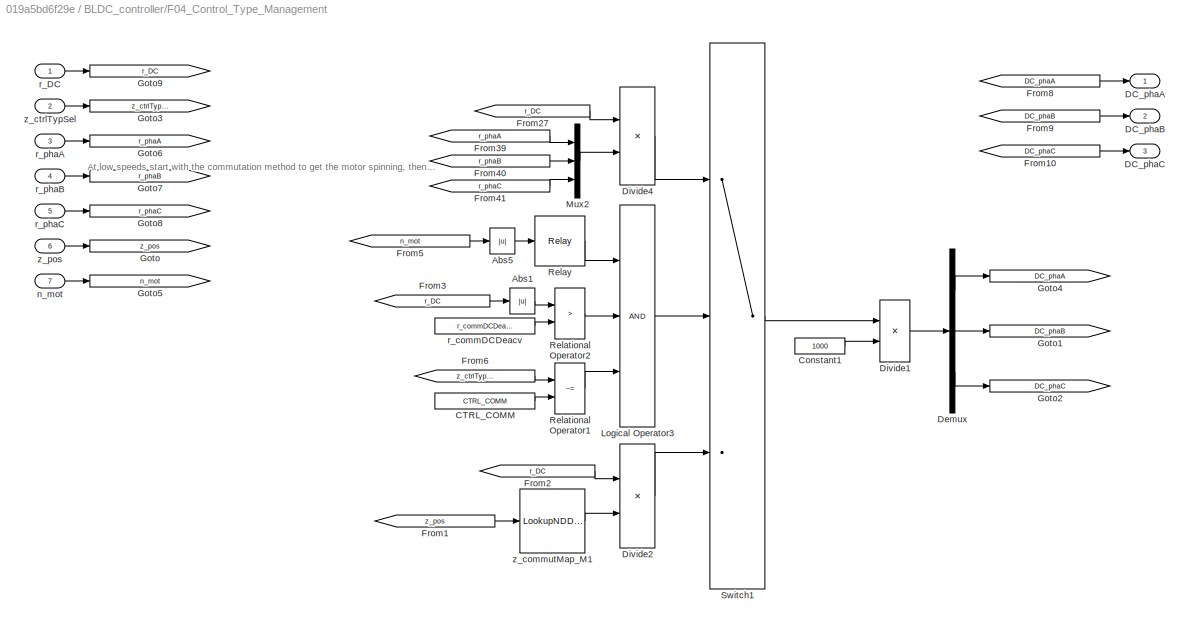
BLOCK [SubSystem] BLDC_controller/F04_Control_Type_Management
  Ports = [7, 3]
  RequestExecContextInheritance = off
  Variant = off
BLOCK [Abs] BLDC_controller/F04_Control_Type_Management/Abs1
  OutDataTypeStr = Inherit: Inherit via back propagation
  RndMeth = Zero
  SaturateOnIntegerOverflow = off
BLOCK [Abs] BLDC_controller/F04_Control_Type_Management/Abs5
  OutDataTypeStr = Inherit: Inherit via back propagation
  RndMeth = Zero
  SaturateOnIntegerOverflow = off
BLOCK [Constant] BLDC_controller/F04_Control_Type_Management/CTRL_COMM
  OutDataTypeStr = Inherit: Inherit via back propagation
  Value = CTRL_COMM
BLOCK [Constant] BLDC_controller/F04_Control_Type_Management/Constant1
  OutDataTypeStr = Inherit: Inherit via back propagation
  Value = 1000
BLOCK [Outport] BLDC_controller/F04_Control_Type_Management/DC_phaA
  IconDisplay = Port number
  InitialOutput = 0
  OutputWhenDisabled = reset
BLOCK [Outport] BLDC_controller/F04_Control_Type_Management/DC_phaB
  IconDisplay = Port number
  InitialOutput = 0
  OutputWhenDisabled = reset
  Port = 2
BLOCK [Outport] BLDC_controller/F04_Control_Type_Management/DC_phaC 
  IconDisplay = Port number
  InitialOutput = 0
  OutputWhenDisabled = reset
  Port = 3
BLOCK [Demux] BLDC_controller/F04_Control_Type_Management/Demux
  DisplayOption = bar
  Outputs = 3
  Ports = [1, 3]
BLOCK [Product] BLDC_controller/F04_Control_Type_Management/Divide1
  InputSameDT = off
  Inputs = */
  Ports = [2, 1]
  RndMeth = Simplest
  SaturateOnIntegerOverflow = off
BLOCK [Product] BLDC_controller/F04_Control_Type_Management/Divide2
  InputSameDT = off
  Inputs = **
  Ports = [2, 1]
  RndMeth = Simplest
  SaturateOnIntegerOverflow = off
BLOCK [Product] BLDC_controller/F04_Control_Type_Management/Divide4
  InputSameDT = off
  Inputs = **
  Ports = [2, 1]
  RndMeth = Simplest
  SaturateOnIntegerOverflow = off
BLOCK [From] BLDC_controller/F04_Control_Type_Management/From1
  GotoTag = z_pos
BLOCK [From] BLDC_controller/F04_Control_Type_Management/From10
  GotoTag = DC_phaC
BLOCK [From] BLDC_controller/F04_Control_Type_Management/From2
  GotoTag = r_DC
BLOCK [From] BLDC_controller/F04_Control_Type_Management/From27
  GotoTag = r_DC
BLOCK [From] BLDC_controller/F04_Control_Type_Management/From3
  GotoTag = r_DC
BLOCK [From] BLDC_controller/F04_Control_Type_Management/From39
  GotoTag = r_phaA
BLOCK [From] BLDC_controller/F04_Control_Type_Management/From40
  GotoTag = r_phaB
BLOCK [From] BLDC_controller/F04_Control_Type_Management/From41
  GotoTag = r_phaC
BLOCK [From] BLDC_controller/F04_Control_Type_Management/From5
  GotoTag = n_mot
BLOCK [From] BLDC_controller/F04_Control_Type_Management/From6
  GotoTag = z_ctrlTypSel
BLOCK [From] BLDC_controller/F04_Control_Type_Management/From8
  GotoTag = DC_phaA
BLOCK [From] BLDC_controller/F04_Control_Type_Management/From9
  GotoTag = DC_phaB
BLOCK [Goto] BLDC_controller/F04_Control_Type_Management/Goto
  GotoTag = z_pos
BLOCK [Goto] BLDC_controller/F04_Control_Type_Management/Goto1
  GotoTag = DC_phaB
BLOCK [Goto] BLDC_controller/F04_Control_Type_Management/Goto2
  GotoTag = DC_phaC
BLOCK [Goto] BLDC_controller/F04_Control_Type_Management/Goto3
  GotoTag = z_ctrlTypSel
BLOCK [Goto] BLDC_controller/F04_Control_Type_Management/Goto4
  GotoTag = DC_phaA
BLOCK [Goto] BLDC_controller/F04_Control_Type_Management/Goto5
  GotoTag = n_mot
BLOCK [Goto] BLDC_controller/F04_Control_Type_Management/Goto6
  GotoTag = r_phaA
BLOCK [Goto] BLDC_controller/F04_Control_Type_Management/Goto7
  GotoTag = r_phaB
BLOCK [Goto] BLDC_controller/F04_Control_Type_Management/Goto8
  GotoTag = r_phaC
BLOCK [Goto] BLDC_controller/F04_Control_Type_Management/Goto9
  GotoTag = r_DC
BLOCK [Logic] BLDC_controller/F04_Control_Type_Management/Logical Operator3
  AllPortsSameDT = off
  Inputs = 3
  OutDataTypeStr = boolean
  Ports = [3, 1]
BLOCK [Mux] BLDC_controller/F04_Control_Type_Management/Mux2
  DisplayOption = bar
  Inputs = 3
  Ports = [3, 1]
BLOCK [RelationalOperator] BLDC_controller/F04_Control_Type_Management/Relational Operator1
  InputSameDT = off
  Operator = ~=
  OutDataTypeStr = boolean
  Ports = [2, 1]
  RndMeth = Simplest
BLOCK [RelationalOperator] BLDC_controller/F04_Control_Type_Management/Relational Operator2
  InputSameDT = off
  Operator = >
  OutDataTypeStr = boolean
  Ports = [2, 1]
  RndMeth = Simplest
BLOCK [Relay] BLDC_controller/F04_Control_Type_Management/Relay
  InputProcessing = Elements as channels (sample based)
  OffSwitchValue = n_commAcvLo
  OnSwitchValue = n_commDeacvHi
  OutDataTypeStr = boolean
BLOCK [Switch] BLDC_controller/F04_Control_Type_Management/Switch1
  Criteria = u2 ~= 0
  InputSameDT = off
  OutDataTypeStr = Inherit: Inherit via back propagation
  RndMeth = Zero
  SaturateOnIntegerOverflow = off
BLOCK [Inport] BLDC_controller/F04_Control_Type_Management/n_mot
  IconDisplay = Port number
  Port = 7
BLOCK [Inport] BLDC_controller/F04_Control_Type_Management/r_DC
  IconDisplay = Port number
BLOCK [Constant] BLDC_controller/F04_Control_Type_Management/r_commDCDeacv
  OutDataTypeStr = Inherit: Inherit via back propagation
  Value = r_commDCDeacv
BLOCK [Inport] BLDC_controller/F04_Control_Type_Management/r_phaA
  IconDisplay = Port number
  Port = 3
BLOCK [Inport] BLDC_controller/F04_Control_Type_Management/r_phaB
  IconDisplay = Port number
  Port = 4
BLOCK [Inport] BLDC_controller/F04_Control_Type_Management/r_phaC
  IconDisplay = Port number
  Port = 5
BLOCK [LookupNDDirect] BLDC_controller/F04_Control_Type_Management/z_commutMap_M1
  DiagnosticForOutOfRangeInput = None
  InputsSelectThisObjectFromTable = Column
  Ports = [1, 1]
  Table = z_commutMap_M1
  TableDataTypeStr = int16
BLOCK [Inport] BLDC_controller/F04_Control_Type_Management/z_ctrlTypSel
  IconDisplay = Port number
  Port = 2
BLOCK [Inport] BLDC_controller/F04_Control_Type_Management/z_pos
  IconDisplay = Port number
  Port = 6
BLOCK [From] BLDC_controller/From
  GotoTag = r_DC
BLOCK [From] BLDC_controller/From1
  GotoTag = n_mot
BLOCK [From] BLDC_controller/From2
  GotoTag = b_hallA
BLOCK [From] BLDC_controller/From3
  GotoTag = b_hallB
BLOCK [From] BLDC_controller/From4
  GotoTag = b_hallC
BLOCK [From] BLDC_controller/From5
  GotoTag = DC_phaA
BLOCK [From] BLDC_controller/From6
  GotoTag = DC_phaB
BLOCK [From] BLDC_controller/From7
  GotoTag = DC_phaC
BLOCK [From] BLDC_controller/From8
  GotoTag = a_elecAngle
BLOCK [From] BLDC_controller/From9
  GotoTag = r_DC
BLOCK [Goto] BLDC_controller/Goto
  GotoTag = r_DC
BLOCK [Goto] BLDC_controller/Goto1
  GotoTag = b_hallA
BLOCK [Goto] BLDC_controller/Goto2
  GotoTag = b_hallB
BLOCK [Goto] BLDC_controller/Goto3
  GotoTag = b_hallC
BLOCK [Goto] BLDC_controller/Goto4
  GotoTag = DC_phaB
BLOCK [Goto] BLDC_controller/Goto5
  GotoTag = DC_phaC
BLOCK [Goto] BLDC_controller/Goto6
  GotoTag = DC_phaA
BLOCK [Goto] BLDC_controller/Goto7
  GotoTag = n_mot
BLOCK [Goto] BLDC_controller/Goto8
  GotoTag = a_elecAngle
BLOCK [If] BLDC_controller/If1
  IfExpression = u1 ~= CTRL_COMM
  Ports = [1, 1]
  ShowElse = off
BLOCK [SubSystem] BLDC_controller/Implemented_control_methods
  Ports = []
  RequestExecContextInheritance = off
  Variant = off
BLOCK [Reference] BLDC_controller/Model_Info  REF=BLDC_controller_Lib/Model_Info
  Ports = []
  SourceBlock = BLDC_controller_Lib/Model_Info
BLOCK [Outport] BLDC_controller/a_elecAngle
  IconDisplay = Port number
  Port = 5
BLOCK [Inport] BLDC_controller/b_hallA 
  IconDisplay = Port number
BLOCK [Inport] BLDC_controller/b_hallB
  IconDisplay = Port number
  Port = 2
BLOCK [Inport] BLDC_controller/b_hallC
  IconDisplay = Port number
  Port = 3
BLOCK [Outport] BLDC_controller/n_mot
  IconDisplay = Port number
  Port = 4
BLOCK [Inport] BLDC_controller/r_DC
  IconDisplay = Port number
  Port = 4
BLOCK [SubSystem] Model_Info
  Ports = []
  RequestExecContextInheritance = off
  Variant = off
BLOCK [SubSystem] Modulo_Calculation
  Ports = [2, 1]
  RequestExecContextInheritance = off
  Variant = off
BLOCK [Product] Modulo_Calculation/Divide2
  InputSameDT = off
  Inputs = */
  Ports = [2, 1]
  RndMeth = Floor
  SaturateOnIntegerOverflow = off
BLOCK [Product] Modulo_Calculation/Divide3
  InputSameDT = off
  Inputs = **
  Ports = [2, 1]
  RndMeth = Floor
  SaturateOnIntegerOverflow = off
BLOCK [Sum] Modulo_Calculation/Sum3
  AccumDataTypeStr = Inherit: Same as first input
  IconShape = round
  InputSameDT = off
  Inputs = |+-
  Ports = [2, 1]
  RndMeth = Simplest
  SaturateOnIntegerOverflow = off
BLOCK [Inport] Modulo_Calculation/div
  IconDisplay = Port number
  Port = 2
BLOCK [Inport] Modulo_Calculation/num
  IconDisplay = Port number
BLOCK [Outport] Modulo_Calculation/rem
  IconDisplay = Port number
BLOCK [SubSystem] falling_edge1
  Ports = [1, 1]
  RTWSystemCode = Nonreusable function
  RequestExecContextInheritance = off
  StopFcn = %tagged
  TreatAsAtomicUnit = on
  UserDataPersistent = on
  Variant = off
BLOCK [Logic] falling_edge1/Logical Operator
  OutDataTypeStr = boolean
  Ports = [2, 1]
  Tag = struct('inputs','2','comment',struct('text','','placement',1),'logdata',struct('maxnumvals',inf,'plotchannels',[],'loggingmode',3,'channels',1),'operator','AND','output',struct('variable','','description','','name','$S_$B','address','','class','default','type','Bool','unit',''),'scalingvalid',0,'date',733067.68453166669)
BLOCK [Logic] falling_edge1/Logical Operator1
  Inputs = 1
  Operator = NOT
  OutDataTypeStr = boolean
  Ports = [1, 1]
  Tag = struct('inputs','1','comment',struct('text','','placement',1),'logdata',struct('maxnumvals',inf,'plotchannels',[],'loggingmode',3,'channels',1),'operator','NOT','output',struct('variable','','description','','name','$S_$B','address','','class','default','type','Bool','unit',''),'scalingvalid',0,'date',733067.68453201384)
BLOCK [Outport] falling_edge1/Out
  IconDisplay = Port number
BLOCK [Inport] falling_edge1/Signal
  IconDisplay = Port number
BLOCK [UnitDelay] falling_edge1/UnitDelay
  AttributesFormatString = Te = %<SampleTime>\nIni=%<X0>
  SampleTime = -1
BLOCK [SubSystem] rising_edge
  Ports = [1, 1]
  RTWSystemCode = Nonreusable function
  RequestExecContextInheritance = off
  StopFcn = %tagged
  TreatAsAtomicUnit = on
  UserDataPersistent = on
  Variant = off
BLOCK [Logic] rising_edge/Logical Operator
  OutDataTypeStr = boolean
  Ports = [2, 1]
  Tag = struct('inputs','2','comment',struct('text','','placement',1),'logdata',struct('maxnumvals',inf,'plotchannels',[],'loggingmode',3,'channels',1),'operator','AND','output',struct('variable','','description','','name','$S_$B','address','','class','default','type','Bool','unit',''),'scalingvalid',0,'date',733067.68458487268)
BLOCK [Logic] rising_edge/Logical Operator1
  Inputs = 1
  Operator = NOT
  OutDataTypeStr = boolean
  Ports = [1, 1]
  Tag = struct('inputs','1','comment',struct('text','','placement',1),'logdata',struct('maxnumvals',inf,'plotchannels',[],'loggingmode',3,'channels',1),'operator','NOT','output',struct('variable','','description','','name','$S_$B','address','','class','default','type','Bool','unit',''),'scalingvalid',0,'date',733067.68458533566)
BLOCK [Outport] rising_edge/Out
  IconDisplay = Port number
BLOCK [Inport] rising_edge/Signal
  IconDisplay = Port number
BLOCK [UnitDelay] rising_edge/UnitDelay
  AttributesFormatString = Te = %<SampleTime>\nIni=%<X0>
  InputProcessing = Elements as channels (sample based)
  SampleTime = -1
BLOCK [SubSystem] rst_Delay
  Ports = [2, 1]
  RequestExecContextInheritance = off
  Variant = off
BLOCK [Constant] rst_Delay/Constant23
  OutDataTypeStr = Inherit: Inherit via back propagation
  Value = 0
BLOCK [Switch] rst_Delay/Switch1
  Criteria = u2 ~= 0
  InputSameDT = off
  OutDataTypeStr = Inherit: Inherit via back propagation
  RndMeth = Simplest
  SaturateOnIntegerOverflow = off
BLOCK [UnitDelay] rst_Delay/UnitDelay1
  InputProcessing = Elements as channels (sample based)
  SampleTime = -1
BLOCK [Inport] rst_Delay/rst
  IconDisplay = Port number
  Port = 2
BLOCK [Inport] rst_Delay/u
  IconDisplay = Port number
BLOCK [Outport] rst_Delay/y
  IconDisplay = Port number
BLOCK [SubSystem] rst_DelayLim
  Ports = [2, 1]
  RequestExecContextInheritance = off
  Variant = off
BLOCK [Constant] rst_DelayLim/Constant1
  OutDataTypeStr = Inherit: Inherit via back propagation
  Value = z_cntMaxLim
BLOCK [Constant] rst_DelayLim/Constant23
  OutDataTypeStr = Inherit: Inherit via back propagation
  Value = 0
BLOCK [RelationalOperator] rst_DelayLim/Relational Operator1
  InputSameDT = off
  Operator = <
  OutDataTypeStr = boolean
  Ports = [2, 1]
  RndMeth = Simplest
BLOCK [Switch] rst_DelayLim/Switch1
  Criteria = u2 ~= 0
  InputSameDT = off
  OutDataTypeStr = Inherit: Inherit via back propagation
  RndMeth = Simplest
  SaturateOnIntegerOverflow = off
BLOCK [Switch] rst_DelayLim/Switch2
  Criteria = u2 ~= 0
  InputSameDT = off
  OutDataTypeStr = Inherit: Inherit via back propagation
  RndMeth = Simplest
  SaturateOnIntegerOverflow = off
BLOCK [UnitDelay] rst_DelayLim/UnitDelay1
  InitialCondition = z_cntMaxLim
  InputProcessing = Elements as channels (sample based)
  SampleTime = -1
BLOCK [Inport] rst_DelayLim/rst
  IconDisplay = Port number
  Port = 2
BLOCK [Inport] rst_DelayLim/u
  IconDisplay = Port number
BLOCK [Outport] rst_DelayLim/y
  IconDisplay = Port number
ANNOTATION BLDC_controller: The rotor position is implemented based on the following table:
ANNOTATION BLDC_controller: Hall_A Hall_B Hall_C vev_hallToPos 0 0 0 0 1 1 1 1 0 0 1 1 0 0 1 1 0 1 0 1 0 1 0 1 0 5 3 4 1 0 2 0
ANNOTATION BLDC_controller/F01_Preliminary_Calculations/F01_02_Position_Calculation: This calculates the low resolution position based on Hall sensors.
ANNOTATION BLDC_controller/F01_Preliminary_Calculations/F01_04_Speed_Calculation: Count time between Hall changes.
ANNOTATION BLDC_controller/F01_Preliminary_Calculations/F01_04_Speed_Calculation: Enable the counter between Hall changes.
ANNOTATION BLDC_controller/F01_Preliminary_Calculations/F01_04_Speed_Calculation/Edge_counter: Count edges only in the same direction to avoid toggling. If direction changes, reset the counter.
ANNOTATION BLDC_controller/F01_Preliminary_Calculations/F01_04_Speed_Calculation/Final_Motor_Speed_Calculation: angle = n_speed * z_counterRaw * (a_elecAngle/cf_speedCoef))
ANNOTATION BLDC_controller/F01_Preliminary_Calculations/F01_04_Speed_Calculation/Final_Motor_Speed_Calculation: Low pass speed filter
ANNOTATION BLDC_controller/F01_Preliminary_Calculations/F01_04_Speed_Calculation/Final_Motor_Speed_Calculation1: Low pass speed filter
ANNOTATION BLDC_controller/F01_Preliminary_Calculations/F01_04_Speed_Calculation/Final_Motor_Speed_Calculation1: Speed calculations: Speed_radps = (f_ctrl_Hz * Mechanical_angle_radps) / z_counter cf_spd_coef = f_ctrl_Hz * Mechanical_angle_deg * pi/180 * 30/pi Speed_radps = cf_spd_coef / z_counter
ANNOTATION BLDC_controller/F01_Preliminary_Calculations/F01_04_Speed_Calculation/Speed_and_Acceleration_Calculation: Counter error calculation. In case the calculation is not enabled output 0.
ANNOTATION BLDC_controller/F01_Preliminary_Calculations/F01_04_Speed_Calculation/Speed_and_Acceleration_Calculation: Speed calculations: Speed_radps = (f_ctrl_Hz * Mechanical_angle_radps) / z_counter cf_spd_coef = f_ctrl_Hz * Mechanical_angle_deg * pi/180 * 30/pi Speed_radps = cf_spd_coef / z_counter
ANNOTATION BLDC_controller/F01_Preliminary_Calculations/F01_04_Speed_Calculation/Speed_and_Acceleration_Calculation1: To be explained
ANNOTATION BLDC_controller/F02_Electrical_Angle_Calculation: Electrical angle calculation
ANNOTATION BLDC_controller/F02_Electrical_Angle_Calculation: Phase Advance / Field weakening
ANNOTATION BLDC_controller/F02_Electrical_Angle_Calculation: Phase Advance map as a function of the Duty Cycle.
ANNOTATION BLDC_controller/F04_Control_Type_Management: At low speeds start with the commutation method to get the motor spinning, then switch to advanced control method.
ANNOTATION Modulo_Calculation: Modulo implementation: rem = num - div*(num/div) Note : Division and multiplier has the setting 'Floor'
LINE BLDC_controller/F01_Preliminary_Calculations/F01_01_Edge_Detector/Logical Operator:1 -> BLDC_controller/F01_Preliminary_Calculations/F01_01_Edge_Detector/b_edge :1
LINE BLDC_controller/F01_Preliminary_Calculations/F01_01_Edge_Detector/UnitDelay1:1 -> BLDC_controller/F01_Preliminary_Calculations/F01_01_Edge_Detector/Logical Operator:5
LINE BLDC_controller/F01_Preliminary_Calculations/F01_01_Edge_Detector/UnitDelay2:1 -> BLDC_controller/F01_Preliminary_Calculations/F01_01_Edge_Detector/Logical Operator:6
LINE BLDC_controller/F01_Preliminary_Calculations/F01_01_Edge_Detector/UnitDelay:1 -> BLDC_controller/F01_Preliminary_Calculations/F01_01_Edge_Detector/Logical Operator:4
NET BLDC_controller/F01_Preliminary_Calculations/F01_01_Edge_Detector/b_hallA:1 -> BLDC_controller/F01_Preliminary_Calculations/F01_01_Edge_Detector/Logical Operator:1, BLDC_controller/F01_Preliminary_Calculations/F01_01_Edge_Detector/UnitDelay:1
NET BLDC_controller/F01_Preliminary_Calculations/F01_01_Edge_Detector/b_hallB:1 -> BLDC_controller/F01_Preliminary_Calculations/F01_01_Edge_Detector/Logical Operator:2, BLDC_controller/F01_Preliminary_Calculations/F01_01_Edge_Detector/UnitDelay1:1
NET BLDC_controller/F01_Preliminary_Calculations/F01_01_Edge_Detector/b_hallC:1 -> BLDC_controller/F01_Preliminary_Calculations/F01_01_Edge_Detector/Logical Operator:3, BLDC_controller/F01_Preliminary_Calculations/F01_01_Edge_Detector/UnitDelay2:1
LINE BLDC_controller/F01_Preliminary_Calculations/F01_01_Edge_Detector:1 -> BLDC_controller/F01_Preliminary_Calculations/Goto7:1
LINE BLDC_controller/F01_Preliminary_Calculations/F01_02_Position_Calculation/Selector:1 -> BLDC_controller/F01_Preliminary_Calculations/F01_02_Position_Calculation/z_pos :1
LINE BLDC_controller/F01_Preliminary_Calculations/F01_02_Position_Calculation/Sum:1 -> BLDC_controller/F01_Preliminary_Calculations/F01_02_Position_Calculation/Selector:2
LINE BLDC_controller/F01_Preliminary_Calculations/F01_02_Position_Calculation/b_hallA:1 -> BLDC_controller/F01_Preliminary_Calculations/F01_02_Position_Calculation/g_Ha:1
LINE BLDC_controller/F01_Preliminary_Calculations/F01_02_Position_Calculation/b_hallB:1 -> BLDC_controller/F01_Preliminary_Calculations/F01_02_Position_Calculation/g_Hb:1
LINE BLDC_controller/F01_Preliminary_Calculations/F01_02_Position_Calculation/b_hallC:1 -> BLDC_controller/F01_Preliminary_Calculations/F01_02_Position_Calculation/Sum:3
LINE BLDC_controller/F01_Preliminary_Calculations/F01_02_Position_Calculation/g_Ha:1 -> BLDC_controller/F01_Preliminary_Calculations/F01_02_Position_Calculation/Sum:1
LINE BLDC_controller/F01_Preliminary_Calculations/F01_02_Position_Calculation/g_Hb:1 -> BLDC_controller/F01_Preliminary_Calculations/F01_02_Position_Calculation/Sum:2
LINE BLDC_controller/F01_Preliminary_Calculations/F01_02_Position_Calculation/vec_hallToPos:1 -> BLDC_controller/F01_Preliminary_Calculations/F01_02_Position_Calculation/Selector:1
LINE BLDC_controller/F01_Preliminary_Calculations/F01_02_Position_Calculation:1 -> BLDC_controller/F01_Preliminary_Calculations/Goto16:1
LINE BLDC_controller/F01_Preliminary_Calculations/F01_03_Direction_Detection/Constant20:1 -> BLDC_controller/F01_Preliminary_Calculations/F01_03_Direction_Detection/Relational Operator6:2
LINE BLDC_controller/F01_Preliminary_Calculations/F01_03_Direction_Detection/Constant23:1 -> BLDC_controller/F01_Preliminary_Calculations/F01_03_Direction_Detection/Switch2:3
LINE BLDC_controller/F01_Preliminary_Calculations/F01_03_Direction_Detection/Constant24:1 -> BLDC_controller/F01_Preliminary_Calculations/F01_03_Direction_Detection/Switch2:1
LINE BLDC_controller/F01_Preliminary_Calculations/F01_03_Direction_Detection/Constant8:1 -> BLDC_controller/F01_Preliminary_Calculations/F01_03_Direction_Detection/Relational Operator1:2
LINE BLDC_controller/F01_Preliminary_Calculations/F01_03_Direction_Detection/Logical Operator3:1 -> BLDC_controller/F01_Preliminary_Calculations/F01_03_Direction_Detection/Switch2:2
LINE BLDC_controller/F01_Preliminary_Calculations/F01_03_Direction_Detection/Relational Operator1:1 -> BLDC_controller/F01_Preliminary_Calculations/F01_03_Direction_Detection/Logical Operator3:1
LINE BLDC_controller/F01_Preliminary_Calculations/F01_03_Direction_Detection/Relational Operator6:1 -> BLDC_controller/F01_Preliminary_Calculations/F01_03_Direction_Detection/Logical Operator3:2
NET BLDC_controller/F01_Preliminary_Calculations/F01_03_Direction_Detection/Sum2:1 -> BLDC_controller/F01_Preliminary_Calculations/F01_03_Direction_Detection/Relational Operator1:1, BLDC_controller/F01_Preliminary_Calculations/F01_03_Direction_Detection/Relational Operator6:1
NET BLDC_controller/F01_Preliminary_Calculations/F01_03_Direction_Detection/Switch2:1 -> BLDC_controller/F01_Preliminary_Calculations/F01_03_Direction_Detection/UnitDelay1:1, BLDC_controller/F01_Preliminary_Calculations/F01_03_Direction_Detection/z_dir:1
LINE BLDC_controller/F01_Preliminary_Calculations/F01_03_Direction_Detection/UnitDelay1:1 -> BLDC_controller/F01_Preliminary_Calculations/F01_03_Direction_Detection/z_dirPrev:1
LINE BLDC_controller/F01_Preliminary_Calculations/F01_03_Direction_Detection/UnitDelay2:1 -> BLDC_controller/F01_Preliminary_Calculations/F01_03_Direction_Detection/Sum2:2
NET BLDC_controller/F01_Preliminary_Calculations/F01_03_Direction_Detection/z_pos:1 -> BLDC_controller/F01_Preliminary_Calculations/F01_03_Direction_Detection/Sum2:1, BLDC_controller/F01_Preliminary_Calculations/F01_03_Direction_Detection/UnitDelay2:1
LINE BLDC_controller/F01_Preliminary_Calculations/F01_03_Direction_Detection:1 -> BLDC_controller/F01_Preliminary_Calculations/Goto21:1
LINE BLDC_controller/F01_Preliminary_Calculations/F01_03_Direction_Detection:2 -> BLDC_controller/F01_Preliminary_Calculations/Goto9:1
LINE BLDC_controller/F01_Preliminary_Calculations/F01_04_Speed_Calculation/Constant6:1 -> BLDC_controller/F01_Preliminary_Calculations/F01_04_Speed_Calculation/Sum1:1
LINE BLDC_controller/F01_Preliminary_Calculations/F01_04_Speed_Calculation/Edge_counter/Constant23:1 -> BLDC_controller/F01_Preliminary_Calculations/F01_04_Speed_Calculation/Edge_counter/Switch2:3
LINE BLDC_controller/F01_Preliminary_Calculations/F01_04_Speed_Calculation/Edge_counter/Constant24:1 -> BLDC_controller/F01_Preliminary_Calculations/F01_04_Speed_Calculation/Edge_counter/Switch2:1
LINE BLDC_controller/F01_Preliminary_Calculations/F01_04_Speed_Calculation/Edge_counter/Logical Operator1:1 -> BLDC_controller/F01_Preliminary_Calculations/F01_04_Speed_Calculation/Edge_counter/Switch2:2
LINE BLDC_controller/F01_Preliminary_Calculations/F01_04_Speed_Calculation/Edge_counter/Logical Operator2:1 -> BLDC_controller/F01_Preliminary_Calculations/F01_04_Speed_Calculation/Edge_counter/rst_Delay:2
NET BLDC_controller/F01_Preliminary_Calculations/F01_04_Speed_Calculation/Edge_counter/Relational Operator1:1 -> BLDC_controller/F01_Preliminary_Calculations/F01_04_Speed_Calculation/Edge_counter/Logical Operator1:2, BLDC_controller/F01_Preliminary_Calculations/F01_04_Speed_Calculation/Edge_counter/Logical Operator2:1
LINE BLDC_controller/F01_Preliminary_Calculations/F01_04_Speed_Calculation/Edge_counter/Relational Operator5:1 -> BLDC_controller/F01_Preliminary_Calculations/F01_04_Speed_Calculation/Edge_counter/cnt:1
NET BLDC_controller/F01_Preliminary_Calculations/F01_04_Speed_Calculation/Edge_counter/Sum2:1 -> BLDC_controller/F01_Preliminary_Calculations/F01_04_Speed_Calculation/Edge_counter/Relational Operator5:1, BLDC_controller/F01_Preliminary_Calculations/F01_04_Speed_Calculation/Edge_counter/rst_Delay:1
LINE BLDC_controller/F01_Preliminary_Calculations/F01_04_Speed_Calculation/Edge_counter/Switch2:1 -> BLDC_controller/F01_Preliminary_Calculations/F01_04_Speed_Calculation/Edge_counter/Sum2:1
LINE BLDC_controller/F01_Preliminary_Calculations/F01_04_Speed_Calculation/Edge_counter/b_edge:1 -> BLDC_controller/F01_Preliminary_Calculations/F01_04_Speed_Calculation/Edge_counter/Logical Operator1:1
LINE BLDC_controller/F01_Preliminary_Calculations/F01_04_Speed_Calculation/Edge_counter/rst_Delay:1 -> BLDC_controller/F01_Preliminary_Calculations/F01_04_Speed_Calculation/Edge_counter/Sum2:2
LINE BLDC_controller/F01_Preliminary_Calculations/F01_04_Speed_Calculation/Edge_counter/z_dir:1 -> BLDC_controller/F01_Preliminary_Calculations/F01_04_Speed_Calculation/Edge_counter/Relational Operator1:1
LINE BLDC_controller/F01_Preliminary_Calculations/F01_04_Speed_Calculation/Edge_counter/z_dirPrev:1 -> BLDC_controller/F01_Preliminary_Calculations/F01_04_Speed_Calculation/Edge_counter/Relational Operator1:2
LINE BLDC_controller/F01_Preliminary_Calculations/F01_04_Speed_Calculation/Edge_counter/z_nrEdgeSpdAcv:1 -> BLDC_controller/F01_Preliminary_Calculations/F01_04_Speed_Calculation/Edge_counter/Relational Operator5:2
LINE BLDC_controller/F01_Preliminary_Calculations/F01_04_Speed_Calculation/Edge_counter:1 -> BLDC_controller/F01_Preliminary_Calculations/F01_04_Speed_Calculation/S-R Flip-Flop:1
LINE BLDC_controller/F01_Preliminary_Calculations/F01_04_Speed_Calculation/Final_Motor_Speed_Calculation/Constant1:1 -> BLDC_controller/F01_Preliminary_Calculations/F01_04_Speed_Calculation/Final_Motor_Speed_Calculation/Divide11:2
LINE BLDC_controller/F01_Preliminary_Calculations/F01_04_Speed_Calculation/Final_Motor_Speed_Calculation/Constant2:1 -> BLDC_controller/F01_Preliminary_Calculations/F01_04_Speed_Calculation/Final_Motor_Speed_Calculation/Sum2:1
LINE BLDC_controller/F01_Preliminary_Calculations/F01_04_Speed_Calculation/Final_Motor_Speed_Calculation/Constant3:1 -> BLDC_controller/F01_Preliminary_Calculations/F01_04_Speed_Calculation/Final_Motor_Speed_Calculation/Divide2:2
LINE BLDC_controller/F01_Preliminary_Calculations/F01_04_Speed_Calculation/Final_Motor_Speed_Calculation/Constant8:1 -> BLDC_controller/F01_Preliminary_Calculations/F01_04_Speed_Calculation/Final_Motor_Speed_Calculation/Divide11:3
LINE BLDC_controller/F01_Preliminary_Calculations/F01_04_Speed_Calculation/Final_Motor_Speed_Calculation/Divide10:1 -> BLDC_controller/F01_Preliminary_Calculations/F01_04_Speed_Calculation/Final_Motor_Speed_Calculation/Divide11:1
LINE BLDC_controller/F01_Preliminary_Calculations/F01_04_Speed_Calculation/Final_Motor_Speed_Calculation/Divide11:1 -> BLDC_controller/F01_Preliminary_Calculations/F01_04_Speed_Calculation/Final_Motor_Speed_Calculation/a_elecAngleHiRes:1
LINE BLDC_controller/F01_Preliminary_Calculations/F01_04_Speed_Calculation/Final_Motor_Speed_Calculation/Divide1:1 -> BLDC_controller/F01_Preliminary_Calculations/F01_04_Speed_Calculation/Final_Motor_Speed_Calculation/Sum1:1
NET BLDC_controller/F01_Preliminary_Calculations/F01_04_Speed_Calculation/Final_Motor_Speed_Calculation/Divide2:1 -> BLDC_controller/F01_Preliminary_Calculations/F01_04_Speed_Calculation/Final_Motor_Speed_Calculation/UnitDelay2:1, BLDC_controller/F01_Preliminary_Calculations/F01_04_Speed_Calculation/Final_Motor_Speed_Calculation/n_mot:1
LINE BLDC_controller/F01_Preliminary_Calculations/F01_04_Speed_Calculation/Final_Motor_Speed_Calculation/Divide3:1 -> BLDC_controller/F01_Preliminary_Calculations/F01_04_Speed_Calculation/Final_Motor_Speed_Calculation/Sum1:2
LINE BLDC_controller/F01_Preliminary_Calculations/F01_04_Speed_Calculation/Final_Motor_Speed_Calculation/From1:1 -> BLDC_controller/F01_Preliminary_Calculations/F01_04_Speed_Calculation/Final_Motor_Speed_Calculation/Divide1:1
NET BLDC_controller/F01_Preliminary_Calculations/F01_04_Speed_Calculation/Final_Motor_Speed_Calculation/From3:1 -> BLDC_controller/F01_Preliminary_Calculations/F01_04_Speed_Calculation/Final_Motor_Speed_Calculation/Divide10:1, BLDC_controller/F01_Preliminary_Calculations/F01_04_Speed_Calculation/Final_Motor_Speed_Calculation/Goto:1, BLDC_controller/F01_Preliminary_Calculations/F01_04_Speed_Calculation/Final_Motor_Speed_Calculation/n_motRaw:1
LINE BLDC_controller/F01_Preliminary_Calculations/F01_04_Speed_Calculation/Final_Motor_Speed_Calculation/From4:1 -> BLDC_controller/F01_Preliminary_Calculations/F01_04_Speed_Calculation/Final_Motor_Speed_Calculation/Divide10:2
LINE BLDC_controller/F01_Preliminary_Calculations/F01_04_Speed_Calculation/Final_Motor_Speed_Calculation/Sum1:1 -> BLDC_controller/F01_Preliminary_Calculations/F01_04_Speed_Calculation/Final_Motor_Speed_Calculation/Divide2:1
LINE BLDC_controller/F01_Preliminary_Calculations/F01_04_Speed_Calculation/Final_Motor_Speed_Calculation/Sum2:1 -> BLDC_controller/F01_Preliminary_Calculations/F01_04_Speed_Calculation/Final_Motor_Speed_Calculation/Divide3:1
LINE BLDC_controller/F01_Preliminary_Calculations/F01_04_Speed_Calculation/Final_Motor_Speed_Calculation/UnitDelay2:1 -> BLDC_controller/F01_Preliminary_Calculations/F01_04_Speed_Calculation/Final_Motor_Speed_Calculation/Divide3:2
NET BLDC_controller/F01_Preliminary_Calculations/F01_04_Speed_Calculation/Final_Motor_Speed_Calculation/cf_speedFilt:1 -> BLDC_controller/F01_Preliminary_Calculations/F01_04_Speed_Calculation/Final_Motor_Speed_Calculation/Divide1:2, BLDC_controller/F01_Preliminary_Calculations/F01_04_Speed_Calculation/Final_Motor_Speed_Calculation/Sum2:2
LINE BLDC_controller/F01_Preliminary_Calculations/F01_04_Speed_Calculation/Final_Motor_Speed_Calculation/dn_speedSca:1 -> BLDC_controller/F01_Preliminary_Calculations/F01_04_Speed_Calculation/Final_Motor_Speed_Calculation/Goto1:1
LINE BLDC_controller/F01_Preliminary_Calculations/F01_04_Speed_Calculation/Final_Motor_Speed_Calculation/n_speedSca:1 -> BLDC_controller/F01_Preliminary_Calculations/F01_04_Speed_Calculation/Final_Motor_Speed_Calculation/Goto2:1
LINE BLDC_controller/F01_Preliminary_Calculations/F01_04_Speed_Calculation/Final_Motor_Speed_Calculation/z_counterRaw:1 -> BLDC_controller/F01_Preliminary_Calculations/F01_04_Speed_Calculation/Final_Motor_Speed_Calculation/Goto22:1
LINE BLDC_controller/F01_Preliminary_Calculations/F01_04_Speed_Calculation/Final_Motor_Speed_Calculation1/Constant2:1 -> BLDC_controller/F01_Preliminary_Calculations/F01_04_Speed_Calculation/Final_Motor_Speed_Calculation1/Sum2:1
LINE BLDC_controller/F01_Preliminary_Calculations/F01_04_Speed_Calculation/Final_Motor_Speed_Calculation1/Constant3:1 -> BLDC_controller/F01_Preliminary_Calculations/F01_04_Speed_Calculation/Final_Motor_Speed_Calculation1/Divide2:2
LINE BLDC_controller/F01_Preliminary_Calculations/F01_04_Speed_Calculation/Final_Motor_Speed_Calculation1/Constant4:1 -> BLDC_controller/F01_Preliminary_Calculations/F01_04_Speed_Calculation/Final_Motor_Speed_Calculation1/Divide7:2
LINE BLDC_controller/F01_Preliminary_Calculations/F01_04_Speed_Calculation/Final_Motor_Speed_Calculation1/Constant5:1 -> BLDC_controller/F01_Preliminary_Calculations/F01_04_Speed_Calculation/Final_Motor_Speed_Calculation1/Divide5:3
LINE BLDC_controller/F01_Preliminary_Calculations/F01_04_Speed_Calculation/Final_Motor_Speed_Calculation1/Constant6:1 -> BLDC_controller/F01_Preliminary_Calculations/F01_04_Speed_Calculation/Final_Motor_Speed_Calculation1/Divide7:3
LINE BLDC_controller/F01_Preliminary_Calculations/F01_04_Speed_Calculation/Final_Motor_Speed_Calculation1/Divide1:1 -> BLDC_controller/F01_Preliminary_Calculations/F01_04_Speed_Calculation/Final_Motor_Speed_Calculation1/Sum1:1
LINE BLDC_controller/F01_Preliminary_Calculations/F01_04_Speed_Calculation/Final_Motor_Speed_Calculation1/Divide2:1 -> BLDC_controller/F01_Preliminary_Calculations/F01_04_Speed_Calculation/Final_Motor_Speed_Calculation1/UnitDelay2:1
LINE BLDC_controller/F01_Preliminary_Calculations/F01_04_Speed_Calculation/Final_Motor_Speed_Calculation1/Divide3:1 -> BLDC_controller/F01_Preliminary_Calculations/F01_04_Speed_Calculation/Final_Motor_Speed_Calculation1/Sum1:2
LINE BLDC_controller/F01_Preliminary_Calculations/F01_04_Speed_Calculation/Final_Motor_Speed_Calculation1/Divide5:1 -> BLDC_controller/F01_Preliminary_Calculations/F01_04_Speed_Calculation/Final_Motor_Speed_Calculation1/Sum4:1
LINE BLDC_controller/F01_Preliminary_Calculations/F01_04_Speed_Calculation/Final_Motor_Speed_Calculation1/Divide6:1 -> BLDC_controller/F01_Preliminary_Calculations/F01_04_Speed_Calculation/Final_Motor_Speed_Calculation1/Sum4:2
LINE BLDC_controller/F01_Preliminary_Calculations/F01_04_Speed_Calculation/Final_Motor_Speed_Calculation1/Divide7:1 -> BLDC_controller/F01_Preliminary_Calculations/F01_04_Speed_Calculation/Final_Motor_Speed_Calculation1/a_elecAngleHiRes:1
NET BLDC_controller/F01_Preliminary_Calculations/F01_04_Speed_Calculation/Final_Motor_Speed_Calculation1/Divide8:1 -> BLDC_controller/F01_Preliminary_Calculations/F01_04_Speed_Calculation/Final_Motor_Speed_Calculation1/Goto:1, BLDC_controller/F01_Preliminary_Calculations/F01_04_Speed_Calculation/Final_Motor_Speed_Calculation1/n_mot:1, BLDC_controller/F01_Preliminary_Calculations/F01_04_Speed_Calculation/Final_Motor_Speed_Calculation1/n_motRaw:1
NET BLDC_controller/F01_Preliminary_Calculations/F01_04_Speed_Calculation/Final_Motor_Speed_Calculation1/Divide9:1 -> BLDC_controller/F01_Preliminary_Calculations/F01_04_Speed_Calculation/Final_Motor_Speed_Calculation1/Divide5:1, BLDC_controller/F01_Preliminary_Calculations/F01_04_Speed_Calculation/Final_Motor_Speed_Calculation1/Sum3:2
LINE BLDC_controller/F01_Preliminary_Calculations/F01_04_Speed_Calculation/Final_Motor_Speed_Calculation1/From1:1 -> BLDC_controller/F01_Preliminary_Calculations/F01_04_Speed_Calculation/Final_Motor_Speed_Calculation1/Divide1:1
NET BLDC_controller/F01_Preliminary_Calculations/F01_04_Speed_Calculation/Final_Motor_Speed_Calculation1/From23:1 -> BLDC_controller/F01_Preliminary_Calculations/F01_04_Speed_Calculation/Final_Motor_Speed_Calculation1/Divide5:2, BLDC_controller/F01_Preliminary_Calculations/F01_04_Speed_Calculation/Final_Motor_Speed_Calculation1/Divide6:1, BLDC_controller/F01_Preliminary_Calculations/F01_04_Speed_Calculation/Final_Motor_Speed_Calculation1/Divide9:2
LINE BLDC_controller/F01_Preliminary_Calculations/F01_04_Speed_Calculation/Final_Motor_Speed_Calculation1/From2:1 -> BLDC_controller/F01_Preliminary_Calculations/F01_04_Speed_Calculation/Final_Motor_Speed_Calculation1/Divide9:1
NET BLDC_controller/F01_Preliminary_Calculations/F01_04_Speed_Calculation/Final_Motor_Speed_Calculation1/From:1 -> BLDC_controller/F01_Preliminary_Calculations/F01_04_Speed_Calculation/Final_Motor_Speed_Calculation1/Divide6:2, BLDC_controller/F01_Preliminary_Calculations/F01_04_Speed_Calculation/Final_Motor_Speed_Calculation1/Sum3:1
LINE BLDC_controller/F01_Preliminary_Calculations/F01_04_Speed_Calculation/Final_Motor_Speed_Calculation1/Sum1:1 -> BLDC_controller/F01_Preliminary_Calculations/F01_04_Speed_Calculation/Final_Motor_Speed_Calculation1/Divide2:1
LINE BLDC_controller/F01_Preliminary_Calculations/F01_04_Speed_Calculation/Final_Motor_Speed_Calculation1/Sum2:1 -> BLDC_controller/F01_Preliminary_Calculations/F01_04_Speed_Calculation/Final_Motor_Speed_Calculation1/Divide3:1
LINE BLDC_controller/F01_Preliminary_Calculations/F01_04_Speed_Calculation/Final_Motor_Speed_Calculation1/Sum3:1 -> BLDC_controller/F01_Preliminary_Calculations/F01_04_Speed_Calculation/Final_Motor_Speed_Calculation1/Divide8:1
LINE BLDC_controller/F01_Preliminary_Calculations/F01_04_Speed_Calculation/Final_Motor_Speed_Calculation1/Sum4:1 -> BLDC_controller/F01_Preliminary_Calculations/F01_04_Speed_Calculation/Final_Motor_Speed_Calculation1/Divide7:1
LINE BLDC_controller/F01_Preliminary_Calculations/F01_04_Speed_Calculation/Final_Motor_Speed_Calculation1/UnitDelay2:1 -> BLDC_controller/F01_Preliminary_Calculations/F01_04_Speed_Calculation/Final_Motor_Speed_Calculation1/Divide3:2
LINE BLDC_controller/F01_Preliminary_Calculations/F01_04_Speed_Calculation/Final_Motor_Speed_Calculation1/cf_spdCoef:1 -> BLDC_controller/F01_Preliminary_Calculations/F01_04_Speed_Calculation/Final_Motor_Speed_Calculation1/Divide8:2
NET BLDC_controller/F01_Preliminary_Calculations/F01_04_Speed_Calculation/Final_Motor_Speed_Calculation1/cf_speedFilt:1 -> BLDC_controller/F01_Preliminary_Calculations/F01_04_Speed_Calculation/Final_Motor_Speed_Calculation1/Divide1:2, BLDC_controller/F01_Preliminary_Calculations/F01_04_Speed_Calculation/Final_Motor_Speed_Calculation1/Sum2:2
LINE BLDC_controller/F01_Preliminary_Calculations/F01_04_Speed_Calculation/Final_Motor_Speed_Calculation1/dn_speedSca:1 -> BLDC_controller/F01_Preliminary_Calculations/F01_04_Speed_Calculation/Final_Motor_Speed_Calculation1/Goto1:1
LINE BLDC_controller/F01_Preliminary_Calculations/F01_04_Speed_Calculation/Final_Motor_Speed_Calculation1/n_speedSca:1 -> BLDC_controller/F01_Preliminary_Calculations/F01_04_Speed_Calculation/Final_Motor_Speed_Calculation1/Goto2:1
LINE BLDC_controller/F01_Preliminary_Calculations/F01_04_Speed_Calculation/Final_Motor_Speed_Calculation1/z_counterRaw:1 -> BLDC_controller/F01_Preliminary_Calculations/F01_04_Speed_Calculation/Final_Motor_Speed_Calculation1/Goto22:1
LINE BLDC_controller/F01_Preliminary_Calculations/F01_04_Speed_Calculation/Final_Motor_Speed_Calculation1:1 -> BLDC_controller/F01_Preliminary_Calculations/F01_04_Speed_Calculation/Goto12:1
LINE BLDC_controller/F01_Preliminary_Calculations/F01_04_Speed_Calculation/Final_Motor_Speed_Calculation1:2 -> BLDC_controller/F01_Preliminary_Calculations/F01_04_Speed_Calculation/Goto10:1
LINE BLDC_controller/F01_Preliminary_Calculations/F01_04_Speed_Calculation/Final_Motor_Speed_Calculation1:3 -> BLDC_controller/F01_Preliminary_Calculations/F01_04_Speed_Calculation/Goto11:1
LINE BLDC_controller/F01_Preliminary_Calculations/F01_04_Speed_Calculation/Final_Motor_Speed_Calculation:1 -> BLDC_controller/F01_Preliminary_Calculations/F01_04_Speed_Calculation/Goto6:1
LINE BLDC_controller/F01_Preliminary_Calculations/F01_04_Speed_Calculation/Final_Motor_Speed_Calculation:2 -> BLDC_controller/F01_Preliminary_Calculations/F01_04_Speed_Calculation/Goto15:1
LINE BLDC_controller/F01_Preliminary_Calculations/F01_04_Speed_Calculation/Final_Motor_Speed_Calculation:3 -> BLDC_controller/F01_Preliminary_Calculations/F01_04_Speed_Calculation/Goto4:1
LINE BLDC_controller/F01_Preliminary_Calculations/F01_04_Speed_Calculation/From10:1 -> BLDC_controller/F01_Preliminary_Calculations/F01_04_Speed_Calculation/Mux1:2
LINE BLDC_controller/F01_Preliminary_Calculations/F01_04_Speed_Calculation/From11:1 -> BLDC_controller/F01_Preliminary_Calculations/F01_04_Speed_Calculation/Logical Operator3:1
LINE BLDC_controller/F01_Preliminary_Calculations/F01_04_Speed_Calculation/From12:1 -> BLDC_controller/F01_Preliminary_Calculations/F01_04_Speed_Calculation/Speed_and_Acceleration_Calculation:3
LINE BLDC_controller/F01_Preliminary_Calculations/F01_04_Speed_Calculation/From13:1 -> BLDC_controller/F01_Preliminary_Calculations/F01_04_Speed_Calculation/Final_Motor_Speed_Calculation:2
LINE BLDC_controller/F01_Preliminary_Calculations/F01_04_Speed_Calculation/From14:1 -> BLDC_controller/F01_Preliminary_Calculations/F01_04_Speed_Calculation/Final_Motor_Speed_Calculation:3
LINE BLDC_controller/F01_Preliminary_Calculations/F01_04_Speed_Calculation/From15:1 -> BLDC_controller/F01_Preliminary_Calculations/F01_04_Speed_Calculation/Mux:2
LINE BLDC_controller/F01_Preliminary_Calculations/F01_04_Speed_Calculation/From16:1 -> BLDC_controller/F01_Preliminary_Calculations/F01_04_Speed_Calculation/Mux:1
LINE BLDC_controller/F01_Preliminary_Calculations/F01_04_Speed_Calculation/From17:1 -> BLDC_controller/F01_Preliminary_Calculations/F01_04_Speed_Calculation/Speed_and_Acceleration_Calculation1:3
LINE BLDC_controller/F01_Preliminary_Calculations/F01_04_Speed_Calculation/From18:1 -> BLDC_controller/F01_Preliminary_Calculations/F01_04_Speed_Calculation/Edge_counter:2
LINE BLDC_controller/F01_Preliminary_Calculations/F01_04_Speed_Calculation/From19:1 -> BLDC_controller/F01_Preliminary_Calculations/F01_04_Speed_Calculation/Edge_counter:3
LINE BLDC_controller/F01_Preliminary_Calculations/F01_04_Speed_Calculation/From1:1 -> BLDC_controller/F01_Preliminary_Calculations/F01_04_Speed_Calculation/n_mot:1
LINE BLDC_controller/F01_Preliminary_Calculations/F01_04_Speed_Calculation/From20:1 -> BLDC_controller/F01_Preliminary_Calculations/F01_04_Speed_Calculation/Final_Motor_Speed_Calculation1:2
LINE BLDC_controller/F01_Preliminary_Calculations/F01_04_Speed_Calculation/From21:1 -> BLDC_controller/F01_Preliminary_Calculations/F01_04_Speed_Calculation/Final_Motor_Speed_Calculation1:3
LINE BLDC_controller/F01_Preliminary_Calculations/F01_04_Speed_Calculation/From22:1 -> BLDC_controller/F01_Preliminary_Calculations/F01_04_Speed_Calculation/Speed_and_Acceleration_Calculation1:2
LINE BLDC_controller/F01_Preliminary_Calculations/F01_04_Speed_Calculation/From23:1 -> BLDC_controller/F01_Preliminary_Calculations/F01_04_Speed_Calculation/Speed_and_Acceleration_Calculation1:1
LINE BLDC_controller/F01_Preliminary_Calculations/F01_04_Speed_Calculation/From24:1 -> BLDC_controller/F01_Preliminary_Calculations/F01_04_Speed_Calculation/Speed_and_Acceleration_Calculation:2
LINE BLDC_controller/F01_Preliminary_Calculations/F01_04_Speed_Calculation/From25:1 -> BLDC_controller/F01_Preliminary_Calculations/F01_04_Speed_Calculation/Speed_and_Acceleration_Calculation:1
LINE BLDC_controller/F01_Preliminary_Calculations/F01_04_Speed_Calculation/From26:1 -> BLDC_controller/F01_Preliminary_Calculations/F01_04_Speed_Calculation/Final_Motor_Speed_Calculation1:1
LINE BLDC_controller/F01_Preliminary_Calculations/F01_04_Speed_Calculation/From27:1 -> BLDC_controller/F01_Preliminary_Calculations/F01_04_Speed_Calculation/If2:1
LINE BLDC_controller/F01_Preliminary_Calculations/F01_04_Speed_Calculation/From2:1 -> BLDC_controller/F01_Preliminary_Calculations/F01_04_Speed_Calculation/Relational Operator6:1
NET BLDC_controller/F01_Preliminary_Calculations/F01_04_Speed_Calculation/From33:1 -> BLDC_controller/F01_Preliminary_Calculations/F01_04_Speed_Calculation/Logical Operator1:2, BLDC_controller/F01_Preliminary_Calculations/F01_04_Speed_Calculation/Switch1:2
LINE BLDC_controller/F01_Preliminary_Calculations/F01_04_Speed_Calculation/From35:1 -> BLDC_controller/F01_Preliminary_Calculations/F01_04_Speed_Calculation/Edge_counter:1
LINE BLDC_controller/F01_Preliminary_Calculations/F01_04_Speed_Calculation/From3:1 -> BLDC_controller/F01_Preliminary_Calculations/F01_04_Speed_Calculation/Final_Motor_Speed_Calculation:1
LINE BLDC_controller/F01_Preliminary_Calculations/F01_04_Speed_Calculation/From44:1 -> BLDC_controller/F01_Preliminary_Calculations/F01_04_Speed_Calculation/Relational Operator1:1
LINE BLDC_controller/F01_Preliminary_Calculations/F01_04_Speed_Calculation/From4:1 -> BLDC_controller/F01_Preliminary_Calculations/F01_04_Speed_Calculation/Mux2:1
LINE BLDC_controller/F01_Preliminary_Calculations/F01_04_Speed_Calculation/From5:1 -> BLDC_controller/F01_Preliminary_Calculations/F01_04_Speed_Calculation/a_elecAngleHiRes:1
LINE BLDC_controller/F01_Preliminary_Calculations/F01_04_Speed_Calculation/From6:1 -> BLDC_controller/F01_Preliminary_Calculations/F01_04_Speed_Calculation/Relational Operator2:1
LINE BLDC_controller/F01_Preliminary_Calculations/F01_04_Speed_Calculation/From7:1 -> BLDC_controller/F01_Preliminary_Calculations/F01_04_Speed_Calculation/Mux2:2
LINE BLDC_controller/F01_Preliminary_Calculations/F01_04_Speed_Calculation/From8:1 -> BLDC_controller/F01_Preliminary_Calculations/F01_04_Speed_Calculation/Speed_and_Acceleration_Calculation:trigger
LINE BLDC_controller/F01_Preliminary_Calculations/F01_04_Speed_Calculation/From9:1 -> BLDC_controller/F01_Preliminary_Calculations/F01_04_Speed_Calculation/Relational Operator2:2
LINE BLDC_controller/F01_Preliminary_Calculations/F01_04_Speed_Calculation/From:1 -> BLDC_controller/F01_Preliminary_Calculations/F01_04_Speed_Calculation/Mux1:1
LINE BLDC_controller/F01_Preliminary_Calculations/F01_04_Speed_Calculation/If1:1 -> BLDC_controller/F01_Preliminary_Calculations/F01_04_Speed_Calculation/Edge_counter:ifaction
LINE BLDC_controller/F01_Preliminary_Calculations/F01_04_Speed_Calculation/If2:1 -> BLDC_controller/F01_Preliminary_Calculations/F01_04_Speed_Calculation/Speed_and_Acceleration_Calculation1:ifaction
LINE BLDC_controller/F01_Preliminary_Calculations/F01_04_Speed_Calculation/Logical Operator1:1 -> BLDC_controller/F01_Preliminary_Calculations/F01_04_Speed_Calculation/Switch:2
NET BLDC_controller/F01_Preliminary_Calculations/F01_04_Speed_Calculation/Logical Operator3:1 -> BLDC_controller/F01_Preliminary_Calculations/F01_04_Speed_Calculation/Goto3:1, BLDC_controller/F01_Preliminary_Calculations/F01_04_Speed_Calculation/Logical Operator1:1, BLDC_controller/F01_Preliminary_Calculations/F01_04_Speed_Calculation/rst_Delay:2
LINE BLDC_controller/F01_Preliminary_Calculations/F01_04_Speed_Calculation/Logical Operator4:1 -> BLDC_controller/F01_Preliminary_Calculations/F01_04_Speed_Calculation/S-R Flip-Flop:2
LINE BLDC_controller/F01_Preliminary_Calculations/F01_04_Speed_Calculation/Mux1:1 -> BLDC_controller/F01_Preliminary_Calculations/F01_04_Speed_Calculation/Scope2:2
LINE BLDC_controller/F01_Preliminary_Calculations/F01_04_Speed_Calculation/Mux2:1 -> BLDC_controller/F01_Preliminary_Calculations/F01_04_Speed_Calculation/Scope2:3
LINE BLDC_controller/F01_Preliminary_Calculations/F01_04_Speed_Calculation/Mux:1 -> BLDC_controller/F01_Preliminary_Calculations/F01_04_Speed_Calculation/Scope2:1
LINE BLDC_controller/F01_Preliminary_Calculations/F01_04_Speed_Calculation/Relational Operator1:1 -> BLDC_controller/F01_Preliminary_Calculations/F01_04_Speed_Calculation/Logical Operator3:2
LINE BLDC_controller/F01_Preliminary_Calculations/F01_04_Speed_Calculation/Relational Operator2:1 -> BLDC_controller/F01_Preliminary_Calculations/F01_04_Speed_Calculation/Logical Operator4:2
LINE BLDC_controller/F01_Preliminary_Calculations/F01_04_Speed_Calculation/Relational Operator6:1 -> BLDC_controller/F01_Preliminary_Calculations/F01_04_Speed_Calculation/Logical Operator4:1
NET BLDC_controller/F01_Preliminary_Calculations/F01_04_Speed_Calculation/S-R Flip-Flop:1 -> BLDC_controller/F01_Preliminary_Calculations/F01_04_Speed_Calculation/Goto19:1, BLDC_controller/F01_Preliminary_Calculations/F01_04_Speed_Calculation/UnitDelay8:1
LINE BLDC_controller/F01_Preliminary_Calculations/F01_04_Speed_Calculation/S-R Flip-Flop:2 -> BLDC_controller/F01_Preliminary_Calculations/F01_04_Speed_Calculation/Terminator:1
LINE BLDC_controller/F01_Preliminary_Calculations/F01_04_Speed_Calculation/Speed_and_Acceleration_Calculation/Constant1:1 -> BLDC_controller/F01_Preliminary_Calculations/F01_04_Speed_Calculation/Speed_and_Acceleration_Calculation/Switch:3
LINE BLDC_controller/F01_Preliminary_Calculations/F01_04_Speed_Calculation/Speed_and_Acceleration_Calculation/Constant3:1 -> BLDC_controller/F01_Preliminary_Calculations/F01_04_Speed_Calculation/Speed_and_Acceleration_Calculation/Divide2:1
LINE BLDC_controller/F01_Preliminary_Calculations/F01_04_Speed_Calculation/Speed_and_Acceleration_Calculation/Divide2:1 -> BLDC_controller/F01_Preliminary_Calculations/F01_04_Speed_Calculation/Speed_and_Acceleration_Calculation/Switch:1
LINE BLDC_controller/F01_Preliminary_Calculations/F01_04_Speed_Calculation/Speed_and_Acceleration_Calculation/From1:1 -> BLDC_controller/F01_Preliminary_Calculations/F01_04_Speed_Calculation/Speed_and_Acceleration_Calculation/Divide2:3
LINE BLDC_controller/F01_Preliminary_Calculations/F01_04_Speed_Calculation/Speed_and_Acceleration_Calculation/From2:1 -> BLDC_controller/F01_Preliminary_Calculations/F01_04_Speed_Calculation/Speed_and_Acceleration_Calculation/Switch:2
LINE BLDC_controller/F01_Preliminary_Calculations/F01_04_Speed_Calculation/Speed_and_Acceleration_Calculation/From:1 -> BLDC_controller/F01_Preliminary_Calculations/F01_04_Speed_Calculation/Speed_and_Acceleration_Calculation/Divide2:2
LINE BLDC_controller/F01_Preliminary_Calculations/F01_04_Speed_Calculation/Speed_and_Acceleration_Calculation/Switch:1 -> BLDC_controller/F01_Preliminary_Calculations/F01_04_Speed_Calculation/Speed_and_Acceleration_Calculation/n_speedSca:1
LINE BLDC_controller/F01_Preliminary_Calculations/F01_04_Speed_Calculation/Speed_and_Acceleration_Calculation/b_cntEna:1 -> BLDC_controller/F01_Preliminary_Calculations/F01_04_Speed_Calculation/Speed_and_Acceleration_Calculation/Goto3:1
LINE BLDC_controller/F01_Preliminary_Calculations/F01_04_Speed_Calculation/Speed_and_Acceleration_Calculation/z_counter:1 -> BLDC_controller/F01_Preliminary_Calculations/F01_04_Speed_Calculation/Speed_and_Acceleration_Calculation/Goto1:1
LINE BLDC_controller/F01_Preliminary_Calculations/F01_04_Speed_Calculation/Speed_and_Acceleration_Calculation/z_dir:1 -> BLDC_controller/F01_Preliminary_Calculations/F01_04_Speed_Calculation/Speed_and_Acceleration_Calculation/Goto2:1
LINE BLDC_controller/F01_Preliminary_Calculations/F01_04_Speed_Calculation/Speed_and_Acceleration_Calculation1/Constant1:1 -> BLDC_controller/F01_Preliminary_Calculations/F01_04_Speed_Calculation/Speed_and_Acceleration_Calculation1/Switch:3
LINE BLDC_controller/F01_Preliminary_Calculations/F01_04_Speed_Calculation/Speed_and_Acceleration_Calculation1/Constant3:1 -> BLDC_controller/F01_Preliminary_Calculations/F01_04_Speed_Calculation/Speed_and_Acceleration_Calculation1/Divide2:1
LINE BLDC_controller/F01_Preliminary_Calculations/F01_04_Speed_Calculation/Speed_and_Acceleration_Calculation1/Divide2:1 -> BLDC_controller/F01_Preliminary_Calculations/F01_04_Speed_Calculation/Speed_and_Acceleration_Calculation1/Switch:1
LINE BLDC_controller/F01_Preliminary_Calculations/F01_04_Speed_Calculation/Speed_and_Acceleration_Calculation1/Divide3:1 -> BLDC_controller/F01_Preliminary_Calculations/F01_04_Speed_Calculation/Speed_and_Acceleration_Calculation1/dn_speedSca:1
NET BLDC_controller/F01_Preliminary_Calculations/F01_04_Speed_Calculation/Speed_and_Acceleration_Calculation1/From1:1 -> BLDC_controller/F01_Preliminary_Calculations/F01_04_Speed_Calculation/Speed_and_Acceleration_Calculation1/Divide2:3, BLDC_controller/F01_Preliminary_Calculations/F01_04_Speed_Calculation/Speed_and_Acceleration_Calculation1/Divide3:2
LINE BLDC_controller/F01_Preliminary_Calculations/F01_04_Speed_Calculation/Speed_and_Acceleration_Calculation1/From2:1 -> BLDC_controller/F01_Preliminary_Calculations/F01_04_Speed_Calculation/Speed_and_Acceleration_Calculation1/Switch:2
LINE BLDC_controller/F01_Preliminary_Calculations/F01_04_Speed_Calculation/Speed_and_Acceleration_Calculation1/From:1 -> BLDC_controller/F01_Preliminary_Calculations/F01_04_Speed_Calculation/Speed_and_Acceleration_Calculation1/Divide2:2
LINE BLDC_controller/F01_Preliminary_Calculations/F01_04_Speed_Calculation/Speed_and_Acceleration_Calculation1/Sum4:1 -> BLDC_controller/F01_Preliminary_Calculations/F01_04_Speed_Calculation/Speed_and_Acceleration_Calculation1/Divide3:1
NET BLDC_controller/F01_Preliminary_Calculations/F01_04_Speed_Calculation/Speed_and_Acceleration_Calculation1/Switch:1 -> BLDC_controller/F01_Preliminary_Calculations/F01_04_Speed_Calculation/Speed_and_Acceleration_Calculation1/Sum4:1, BLDC_controller/F01_Preliminary_Calculations/F01_04_Speed_Calculation/Speed_and_Acceleration_Calculation1/UnitDelay5:1, BLDC_controller/F01_Preliminary_Calculations/F01_04_Speed_Calculation/Speed_and_Acceleration_Calculation1/n_speedSca:1
LINE BLDC_controller/F01_Preliminary_Calculations/F01_04_Speed_Calculation/Speed_and_Acceleration_Calculation1/UnitDelay5:1 -> BLDC_controller/F01_Preliminary_Calculations/F01_04_Speed_Calculation/Speed_and_Acceleration_Calculation1/Sum4:2
LINE BLDC_controller/F01_Preliminary_Calculations/F01_04_Speed_Calculation/Speed_and_Acceleration_Calculation1/b_cntEna:1 -> BLDC_controller/F01_Preliminary_Calculations/F01_04_Speed_Calculation/Speed_and_Acceleration_Calculation1/Goto3:1
LINE BLDC_controller/F01_Preliminary_Calculations/F01_04_Speed_Calculation/Speed_and_Acceleration_Calculation1/z_counter:1 -> BLDC_controller/F01_Preliminary_Calculations/F01_04_Speed_Calculation/Speed_and_Acceleration_Calculation1/Goto1:1
LINE BLDC_controller/F01_Preliminary_Calculations/F01_04_Speed_Calculation/Speed_and_Acceleration_Calculation1/z_dir:1 -> BLDC_controller/F01_Preliminary_Calculations/F01_04_Speed_Calculation/Speed_and_Acceleration_Calculation1/Goto2:1
LINE BLDC_controller/F01_Preliminary_Calculations/F01_04_Speed_Calculation/Speed_and_Acceleration_Calculation1:1 -> BLDC_controller/F01_Preliminary_Calculations/F01_04_Speed_Calculation/Goto13:1
LINE BLDC_controller/F01_Preliminary_Calculations/F01_04_Speed_Calculation/Speed_and_Acceleration_Calculation1:2 -> BLDC_controller/F01_Preliminary_Calculations/F01_04_Speed_Calculation/Goto14:1
LINE BLDC_controller/F01_Preliminary_Calculations/F01_04_Speed_Calculation/Speed_and_Acceleration_Calculation:1 -> BLDC_controller/F01_Preliminary_Calculations/F01_04_Speed_Calculation/Goto7:1
NET BLDC_controller/F01_Preliminary_Calculations/F01_04_Speed_Calculation/Sum1:1 -> BLDC_controller/F01_Preliminary_Calculations/F01_04_Speed_Calculation/Goto8:1, BLDC_controller/F01_Preliminary_Calculations/F01_04_Speed_Calculation/rst_Delay:1, BLDC_controller/F01_Preliminary_Calculations/F01_04_Speed_Calculation/z_counterRawPrev:1
LINE BLDC_controller/F01_Preliminary_Calculations/F01_04_Speed_Calculation/Switch1:1 -> BLDC_controller/F01_Preliminary_Calculations/F01_04_Speed_Calculation/Switch:3
NET BLDC_controller/F01_Preliminary_Calculations/F01_04_Speed_Calculation/Switch:1 -> BLDC_controller/F01_Preliminary_Calculations/F01_04_Speed_Calculation/Goto5:1, BLDC_controller/F01_Preliminary_Calculations/F01_04_Speed_Calculation/z_counter2:1
LINE BLDC_controller/F01_Preliminary_Calculations/F01_04_Speed_Calculation/UnitDelay8:1 -> BLDC_controller/F01_Preliminary_Calculations/F01_04_Speed_Calculation/If1:1
LINE BLDC_controller/F01_Preliminary_Calculations/F01_04_Speed_Calculation/b_edge:1 -> BLDC_controller/F01_Preliminary_Calculations/F01_04_Speed_Calculation/Goto:1
LINE BLDC_controller/F01_Preliminary_Calculations/F01_04_Speed_Calculation/rst_Delay:1 -> BLDC_controller/F01_Preliminary_Calculations/F01_04_Speed_Calculation/Sum1:2
LINE BLDC_controller/F01_Preliminary_Calculations/F01_04_Speed_Calculation/z_counter2:1 -> BLDC_controller/F01_Preliminary_Calculations/F01_04_Speed_Calculation/Switch1:3
NET BLDC_controller/F01_Preliminary_Calculations/F01_04_Speed_Calculation/z_counterRawPrev:1 -> BLDC_controller/F01_Preliminary_Calculations/F01_04_Speed_Calculation/Goto22:1, BLDC_controller/F01_Preliminary_Calculations/F01_04_Speed_Calculation/Switch:1
LINE BLDC_controller/F01_Preliminary_Calculations/F01_04_Speed_Calculation/z_dir:1 -> BLDC_controller/F01_Preliminary_Calculations/F01_04_Speed_Calculation/Goto1:1
LINE BLDC_controller/F01_Preliminary_Calculations/F01_04_Speed_Calculation/z_dirPrev:1 -> BLDC_controller/F01_Preliminary_Calculations/F01_04_Speed_Calculation/Goto2:1
LINE BLDC_controller/F01_Preliminary_Calculations/F01_04_Speed_Calculation/z_maxCntRst1:1 -> BLDC_controller/F01_Preliminary_Calculations/F01_04_Speed_Calculation/Switch1:1
LINE BLDC_controller/F01_Preliminary_Calculations/F01_04_Speed_Calculation/z_maxCntRst2:1 -> BLDC_controller/F01_Preliminary_Calculations/F01_04_Speed_Calculation/Relational Operator6:2
LINE BLDC_controller/F01_Preliminary_Calculations/F01_04_Speed_Calculation/z_maxCntRst:1 -> BLDC_controller/F01_Preliminary_Calculations/F01_04_Speed_Calculation/Relational Operator1:2
LINE BLDC_controller/F01_Preliminary_Calculations/F01_04_Speed_Calculation:1 -> BLDC_controller/F01_Preliminary_Calculations/Goto4:1
LINE BLDC_controller/F01_Preliminary_Calculations/F01_04_Speed_Calculation:2 -> BLDC_controller/F01_Preliminary_Calculations/Goto5:1
LINE BLDC_controller/F01_Preliminary_Calculations/From10:1 -> BLDC_controller/F01_Preliminary_Calculations/z_pos:1
LINE BLDC_controller/F01_Preliminary_Calculations/From12:1 -> BLDC_controller/F01_Preliminary_Calculations/a_elecAngleHiRes:1
LINE BLDC_controller/F01_Preliminary_Calculations/From13:1 -> BLDC_controller/F01_Preliminary_Calculations/F01_04_Speed_Calculation:2
LINE BLDC_controller/F01_Preliminary_Calculations/From14:1 -> BLDC_controller/F01_Preliminary_Calculations/z_ctrlTypSel:1
LINE BLDC_controller/F01_Preliminary_Calculations/From15:1 -> BLDC_controller/F01_Preliminary_Calculations/F01_04_Speed_Calculation:3
LINE BLDC_controller/F01_Preliminary_Calculations/From1:1 -> BLDC_controller/F01_Preliminary_Calculations/F01_04_Speed_Calculation:1
LINE BLDC_controller/F01_Preliminary_Calculations/From2:1 -> BLDC_controller/F01_Preliminary_Calculations/F01_02_Position_Calculation:1
LINE BLDC_controller/F01_Preliminary_Calculations/From36:1 -> BLDC_controller/F01_Preliminary_Calculations/F01_03_Direction_Detection:1
LINE BLDC_controller/F01_Preliminary_Calculations/From38:1 -> BLDC_controller/F01_Preliminary_Calculations/If2:1
LINE BLDC_controller/F01_Preliminary_Calculations/From3:1 -> BLDC_controller/F01_Preliminary_Calculations/F01_02_Position_Calculation:2
LINE BLDC_controller/F01_Preliminary_Calculations/From4:1 -> BLDC_controller/F01_Preliminary_Calculations/F01_02_Position_Calculation:3
LINE BLDC_controller/F01_Preliminary_Calculations/From5:1 -> BLDC_controller/F01_Preliminary_Calculations/F01_01_Edge_Detector:1
LINE BLDC_controller/F01_Preliminary_Calculations/From6:1 -> BLDC_controller/F01_Preliminary_Calculations/F01_01_Edge_Detector:2
LINE BLDC_controller/F01_Preliminary_Calculations/From7:1 -> BLDC_controller/F01_Preliminary_Calculations/F01_01_Edge_Detector:3
LINE BLDC_controller/F01_Preliminary_Calculations/From8:1 -> BLDC_controller/F01_Preliminary_Calculations/n_mot :1
LINE BLDC_controller/F01_Preliminary_Calculations/From9:1 -> BLDC_controller/F01_Preliminary_Calculations/z_dir:1
LINE BLDC_controller/F01_Preliminary_Calculations/If2:1 -> BLDC_controller/F01_Preliminary_Calculations/F01_03_Direction_Detection:ifaction
LINE BLDC_controller/F01_Preliminary_Calculations/b_hallA:1 -> BLDC_controller/F01_Preliminary_Calculations/Goto:1
LINE BLDC_controller/F01_Preliminary_Calculations/b_hallB:1 -> BLDC_controller/F01_Preliminary_Calculations/Goto1:1
LINE BLDC_controller/F01_Preliminary_Calculations/b_hallC:1 -> BLDC_controller/F01_Preliminary_Calculations/Goto2:1
LINE BLDC_controller/F01_Preliminary_Calculations/z_ctrlTypSel1:1 -> BLDC_controller/F01_Preliminary_Calculations/Goto8:1
NET BLDC_controller/F01_Preliminary_Calculations:1 -> BLDC_controller/F03_Control_Method_Selection:1, BLDC_controller/F04_Control_Type_Management:2, BLDC_controller/If1:1
NET BLDC_controller/F01_Preliminary_Calculations:2 -> BLDC_controller/F02_Electrical_Angle_Calculation:2, BLDC_controller/F04_Control_Type_Management:6
LINE BLDC_controller/F01_Preliminary_Calculations:3 -> BLDC_controller/F02_Electrical_Angle_Calculation:3
LINE BLDC_controller/F01_Preliminary_Calculations:4 -> BLDC_controller/F02_Electrical_Angle_Calculation:4
NET BLDC_controller/F01_Preliminary_Calculations:5 -> BLDC_controller/F04_Control_Type_Management:7, BLDC_controller/Goto7:1
LINE BLDC_controller/F02_Electrical_Angle_Calculation/Abs2:1 -> BLDC_controller/F02_Electrical_Angle_Calculation/r_phaAdvDC_XA:1
LINE BLDC_controller/F02_Electrical_Angle_Calculation/Constant16:1 -> BLDC_controller/F02_Electrical_Angle_Calculation/Relational Operator7:2
LINE BLDC_controller/F02_Electrical_Angle_Calculation/Constant2:1 -> BLDC_controller/F02_Electrical_Angle_Calculation/Sum1:2
LINE BLDC_controller/F02_Electrical_Angle_Calculation/Divide5:1 -> BLDC_controller/F02_Electrical_Angle_Calculation/Sum2:1
LINE BLDC_controller/F02_Electrical_Angle_Calculation/From10:1 -> BLDC_controller/F02_Electrical_Angle_Calculation/a_elecAngleAdv:1
LINE BLDC_controller/F02_Electrical_Angle_Calculation/From11:1 -> BLDC_controller/F02_Electrical_Angle_Calculation/Abs2:1
LINE BLDC_controller/F02_Electrical_Angle_Calculation/From12:1 -> BLDC_controller/F02_Electrical_Angle_Calculation/Switch_PhaAdv:3
LINE BLDC_controller/F02_Electrical_Angle_Calculation/From2:1 -> BLDC_controller/F02_Electrical_Angle_Calculation/Mux:1
LINE BLDC_controller/F02_Electrical_Angle_Calculation/From3:1 -> BLDC_controller/F02_Electrical_Angle_Calculation/Mux:2
NET BLDC_controller/F02_Electrical_Angle_Calculation/From51:1 -> BLDC_controller/F02_Electrical_Angle_Calculation/Sum1:1, BLDC_controller/F02_Electrical_Angle_Calculation/Switch3:1
LINE BLDC_controller/F02_Electrical_Angle_Calculation/From52:1 -> BLDC_controller/F02_Electrical_Angle_Calculation/Sum2:2
LINE BLDC_controller/F02_Electrical_Angle_Calculation/From54:1 -> BLDC_controller/F02_Electrical_Angle_Calculation/Relational Operator7:1
LINE BLDC_controller/F02_Electrical_Angle_Calculation/From5:1 -> BLDC_controller/F02_Electrical_Angle_Calculation/a_elecAngle:1
LINE BLDC_controller/F02_Electrical_Angle_Calculation/From6:1 -> BLDC_controller/F02_Electrical_Angle_Calculation/Scope:2
LINE BLDC_controller/F02_Electrical_Angle_Calculation/From7:1 -> BLDC_controller/F02_Electrical_Angle_Calculation/Sum3:1
LINE BLDC_controller/F02_Electrical_Angle_Calculation/From9:1 -> BLDC_controller/F02_Electrical_Angle_Calculation/Product2:2
LINE BLDC_controller/F02_Electrical_Angle_Calculation/Math Function:1 -> BLDC_controller/F02_Electrical_Angle_Calculation/Switch_PhaAdv:1
LINE BLDC_controller/F02_Electrical_Angle_Calculation/Mux:1 -> BLDC_controller/F02_Electrical_Angle_Calculation/Scope:1
LINE BLDC_controller/F02_Electrical_Angle_Calculation/Product2:1 -> BLDC_controller/F02_Electrical_Angle_Calculation/Sum3:2
LINE BLDC_controller/F02_Electrical_Angle_Calculation/Relational Operator7:1 -> BLDC_controller/F02_Electrical_Angle_Calculation/Switch3:2
LINE BLDC_controller/F02_Electrical_Angle_Calculation/Sum1:1 -> BLDC_controller/F02_Electrical_Angle_Calculation/Switch3:3
LINE BLDC_controller/F02_Electrical_Angle_Calculation/Sum2:1 -> BLDC_controller/F02_Electrical_Angle_Calculation/Goto7:1
LINE BLDC_controller/F02_Electrical_Angle_Calculation/Sum3:1 -> BLDC_controller/F02_Electrical_Angle_Calculation/Math Function:1
LINE BLDC_controller/F02_Electrical_Angle_Calculation/Switch3:1 -> BLDC_controller/F02_Electrical_Angle_Calculation/Divide5:1
LINE BLDC_controller/F02_Electrical_Angle_Calculation/Switch_PhaAdv:1 -> BLDC_controller/F02_Electrical_Angle_Calculation/Goto9:1
LINE BLDC_controller/F02_Electrical_Angle_Calculation/a_elecAngle1:1 -> BLDC_controller/F02_Electrical_Angle_Calculation/Divide5:2
LINE BLDC_controller/F02_Electrical_Angle_Calculation/a_elecAngleHiRes:1 -> BLDC_controller/F02_Electrical_Angle_Calculation/Goto2:1
LINE BLDC_controller/F02_Electrical_Angle_Calculation/a_elecPeriod1:1 -> BLDC_controller/F02_Electrical_Angle_Calculation/Switch_PhaAdv:2
LINE BLDC_controller/F02_Electrical_Angle_Calculation/a_elecPeriod2:1 -> BLDC_controller/F02_Electrical_Angle_Calculation/Math Function:2
NET BLDC_controller/F02_Electrical_Angle_Calculation/a_phaAdv_M2:1 -> BLDC_controller/F02_Electrical_Angle_Calculation/Goto5:1, BLDC_controller/F02_Electrical_Angle_Calculation/Product2:1
LINE BLDC_controller/F02_Electrical_Angle_Calculation/r_DC:1 -> BLDC_controller/F02_Electrical_Angle_Calculation/Goto8:1
LINE BLDC_controller/F02_Electrical_Angle_Calculation/r_phaAdvDC_XA:1 -> BLDC_controller/F02_Electrical_Angle_Calculation/a_phaAdv_M2:1
LINE BLDC_controller/F02_Electrical_Angle_Calculation/r_phaAdvDC_XA:2 -> BLDC_controller/F02_Electrical_Angle_Calculation/a_phaAdv_M2:2
LINE BLDC_controller/F02_Electrical_Angle_Calculation/z_dir:1 -> BLDC_controller/F02_Electrical_Angle_Calculation/Goto1:1
LINE BLDC_controller/F02_Electrical_Angle_Calculation/z_pos:1 -> BLDC_controller/F02_Electrical_Angle_Calculation/Goto:1
LINE BLDC_controller/F02_Electrical_Angle_Calculation:1 -> BLDC_controller/F03_Control_Method_Selection:2
LINE BLDC_controller/F02_Electrical_Angle_Calculation:2 -> BLDC_controller/Goto8:1
LINE BLDC_controller/F03_Control_Method_Selection/F03_01_Pure_Trapezoidal_Method/a_elecAngleAdv:1 -> BLDC_controller/F03_Control_Method_Selection/F03_01_Pure_Trapezoidal_Method/a_trapElecAngle_XA:1
NET BLDC_controller/F03_Control_Method_Selection/F03_01_Pure_Trapezoidal_Method/a_trapElecAngle_XA:1 -> BLDC_controller/F03_Control_Method_Selection/F03_01_Pure_Trapezoidal_Method/r_trapPhaA_M1:1, BLDC_controller/F03_Control_Method_Selection/F03_01_Pure_Trapezoidal_Method/r_trapPhaB_M1:1, BLDC_controller/F03_Control_Method_Selection/F03_01_Pure_Trapezoidal_Method/r_trapPhaC_M1:1
NET BLDC_controller/F03_Control_Method_Selection/F03_01_Pure_Trapezoidal_Method/a_trapElecAngle_XA:2 -> BLDC_controller/F03_Control_Method_Selection/F03_01_Pure_Trapezoidal_Method/r_trapPhaA_M1:2, BLDC_controller/F03_Control_Method_Selection/F03_01_Pure_Trapezoidal_Method/r_trapPhaB_M1:2, BLDC_controller/F03_Control_Method_Selection/F03_01_Pure_Trapezoidal_Method/r_trapPhaC_M1:2
LINE BLDC_controller/F03_Control_Method_Selection/F03_01_Pure_Trapezoidal_Method/r_trapPhaA_M1:1 -> BLDC_controller/F03_Control_Method_Selection/F03_01_Pure_Trapezoidal_Method/r_phaA_Trap:1
LINE BLDC_controller/F03_Control_Method_Selection/F03_01_Pure_Trapezoidal_Method/r_trapPhaB_M1:1 -> BLDC_controller/F03_Control_Method_Selection/F03_01_Pure_Trapezoidal_Method/r_phaB_Trap:1
LINE BLDC_controller/F03_Control_Method_Selection/F03_01_Pure_Trapezoidal_Method/r_trapPhaC_M1:1 -> BLDC_controller/F03_Control_Method_Selection/F03_01_Pure_Trapezoidal_Method/r_phaC_Trap:1
LINE BLDC_controller/F03_Control_Method_Selection/F03_01_Pure_Trapezoidal_Method:1 -> BLDC_controller/F03_Control_Method_Selection/Goto9:1
LINE BLDC_controller/F03_Control_Method_Selection/F03_01_Pure_Trapezoidal_Method:2 -> BLDC_controller/F03_Control_Method_Selection/Goto12:1
LINE BLDC_controller/F03_Control_Method_Selection/F03_01_Pure_Trapezoidal_Method:3 -> BLDC_controller/F03_Control_Method_Selection/Goto14:1
LINE BLDC_controller/F03_Control_Method_Selection/F03_02_Sinusoidal_Method/a_elecAngleAdv:1 -> BLDC_controller/F03_Control_Method_Selection/F03_02_Sinusoidal_Method/a_sinElecAngle_XA:1
NET BLDC_controller/F03_Control_Method_Selection/F03_02_Sinusoidal_Method/a_sinElecAngle_XA:1 -> BLDC_controller/F03_Control_Method_Selection/F03_02_Sinusoidal_Method/r_sinPhaA_M1:1, BLDC_controller/F03_Control_Method_Selection/F03_02_Sinusoidal_Method/r_sinPhaB_M1:1, BLDC_controller/F03_Control_Method_Selection/F03_02_Sinusoidal_Method/r_sinPhaC_M1:1
NET BLDC_controller/F03_Control_Method_Selection/F03_02_Sinusoidal_Method/a_sinElecAngle_XA:2 -> BLDC_controller/F03_Control_Method_Selection/F03_02_Sinusoidal_Method/r_sinPhaA_M1:2, BLDC_controller/F03_Control_Method_Selection/F03_02_Sinusoidal_Method/r_sinPhaB_M1:2, BLDC_controller/F03_Control_Method_Selection/F03_02_Sinusoidal_Method/r_sinPhaC_M1:2
LINE BLDC_controller/F03_Control_Method_Selection/F03_02_Sinusoidal_Method/r_sinPhaA_M1:1 -> BLDC_controller/F03_Control_Method_Selection/F03_02_Sinusoidal_Method/r_phaA_Sin:1
LINE BLDC_controller/F03_Control_Method_Selection/F03_02_Sinusoidal_Method/r_sinPhaB_M1:1 -> BLDC_controller/F03_Control_Method_Selection/F03_02_Sinusoidal_Method/r_phaB_Sin:1
LINE BLDC_controller/F03_Control_Method_Selection/F03_02_Sinusoidal_Method/r_sinPhaC_M1:1 -> BLDC_controller/F03_Control_Method_Selection/F03_02_Sinusoidal_Method/r_phaC_Sin:1
LINE BLDC_controller/F03_Control_Method_Selection/F03_02_Sinusoidal_Method:1 -> BLDC_controller/F03_Control_Method_Selection/Goto7:1
LINE BLDC_controller/F03_Control_Method_Selection/F03_02_Sinusoidal_Method:2 -> BLDC_controller/F03_Control_Method_Selection/Goto5:1
LINE BLDC_controller/F03_Control_Method_Selection/F03_02_Sinusoidal_Method:3 -> BLDC_controller/F03_Control_Method_Selection/Goto6:1
LINE BLDC_controller/F03_Control_Method_Selection/F03_03_Sinusoidal3rd_Method/a_elecAngleAdv:1 -> BLDC_controller/F03_Control_Method_Selection/F03_03_Sinusoidal3rd_Method/a_sinElecAngle_XA:1
NET BLDC_controller/F03_Control_Method_Selection/F03_03_Sinusoidal3rd_Method/a_sinElecAngle_XA:1 -> BLDC_controller/F03_Control_Method_Selection/F03_03_Sinusoidal3rd_Method/r_sin3PhaA_M1:1, BLDC_controller/F03_Control_Method_Selection/F03_03_Sinusoidal3rd_Method/r_sin3PhaB_M1:1, BLDC_controller/F03_Control_Method_Selection/F03_03_Sinusoidal3rd_Method/r_sin3PhaC_M1:1
NET BLDC_controller/F03_Control_Method_Selection/F03_03_Sinusoidal3rd_Method/a_sinElecAngle_XA:2 -> BLDC_controller/F03_Control_Method_Selection/F03_03_Sinusoidal3rd_Method/r_sin3PhaA_M1:2, BLDC_controller/F03_Control_Method_Selection/F03_03_Sinusoidal3rd_Method/r_sin3PhaB_M1:2, BLDC_controller/F03_Control_Method_Selection/F03_03_Sinusoidal3rd_Method/r_sin3PhaC_M1:2
LINE BLDC_controller/F03_Control_Method_Selection/F03_03_Sinusoidal3rd_Method/r_sin3PhaA_M1:1 -> BLDC_controller/F03_Control_Method_Selection/F03_03_Sinusoidal3rd_Method/r_phaA_Sin3:1
LINE BLDC_controller/F03_Control_Method_Selection/F03_03_Sinusoidal3rd_Method/r_sin3PhaB_M1:1 -> BLDC_controller/F03_Control_Method_Selection/F03_03_Sinusoidal3rd_Method/r_phaB_Sin3:1
LINE BLDC_controller/F03_Control_Method_Selection/F03_03_Sinusoidal3rd_Method/r_sin3PhaC_M1:1 -> BLDC_controller/F03_Control_Method_Selection/F03_03_Sinusoidal3rd_Method/r_phaC_Sin3:1
LINE BLDC_controller/F03_Control_Method_Selection/F03_03_Sinusoidal3rd_Method:1 -> BLDC_controller/F03_Control_Method_Selection/Goto11:1
LINE BLDC_controller/F03_Control_Method_Selection/F03_03_Sinusoidal3rd_Method:2 -> BLDC_controller/F03_Control_Method_Selection/Goto8:1
LINE BLDC_controller/F03_Control_Method_Selection/F03_03_Sinusoidal3rd_Method:3 -> BLDC_controller/F03_Control_Method_Selection/Goto10:1
LINE BLDC_controller/F03_Control_Method_Selection/From10:1 -> BLDC_controller/F03_Control_Method_Selection/r_phaC :1
LINE BLDC_controller/F03_Control_Method_Selection/From13:1 -> BLDC_controller/F03_Control_Method_Selection/Merge1:1
LINE BLDC_controller/F03_Control_Method_Selection/From14:1 -> BLDC_controller/F03_Control_Method_Selection/Merge2:1
LINE BLDC_controller/F03_Control_Method_Selection/From15:1 -> BLDC_controller/F03_Control_Method_Selection/Merge:2
LINE BLDC_controller/F03_Control_Method_Selection/From16:1 -> BLDC_controller/F03_Control_Method_Selection/Merge1:2
LINE BLDC_controller/F03_Control_Method_Selection/From17:1 -> BLDC_controller/F03_Control_Method_Selection/Merge2:2
LINE BLDC_controller/F03_Control_Method_Selection/From18:1 -> BLDC_controller/F03_Control_Method_Selection/Merge:3
LINE BLDC_controller/F03_Control_Method_Selection/From19:1 -> BLDC_controller/F03_Control_Method_Selection/Merge1:3
LINE BLDC_controller/F03_Control_Method_Selection/From20:1 -> BLDC_controller/F03_Control_Method_Selection/Merge2:3
LINE BLDC_controller/F03_Control_Method_Selection/From4:1 -> BLDC_controller/F03_Control_Method_Selection/Switch Case:1
LINE BLDC_controller/F03_Control_Method_Selection/From5:1 -> BLDC_controller/F03_Control_Method_Selection/F03_02_Sinusoidal_Method:1
LINE BLDC_controller/F03_Control_Method_Selection/From6:1 -> BLDC_controller/F03_Control_Method_Selection/F03_03_Sinusoidal3rd_Method:1
LINE BLDC_controller/F03_Control_Method_Selection/From7:1 -> BLDC_controller/F03_Control_Method_Selection/Merge:1
LINE BLDC_controller/F03_Control_Method_Selection/From8:1 -> BLDC_controller/F03_Control_Method_Selection/r_phaA:1
LINE BLDC_controller/F03_Control_Method_Selection/From9:1 -> BLDC_controller/F03_Control_Method_Selection/r_phaB:1
LINE BLDC_controller/F03_Control_Method_Selection/From:1 -> BLDC_controller/F03_Control_Method_Selection/F03_01_Pure_Trapezoidal_Method:1
NET BLDC_controller/F03_Control_Method_Selection/Merge1:1 -> BLDC_controller/F03_Control_Method_Selection/Goto1:1, BLDC_controller/F03_Control_Method_Selection/signal_log1:1
NET BLDC_controller/F03_Control_Method_Selection/Merge2:1 -> BLDC_controller/F03_Control_Method_Selection/Goto2:1, BLDC_controller/F03_Control_Method_Selection/signal_log2:1
NET BLDC_controller/F03_Control_Method_Selection/Merge:1 -> BLDC_controller/F03_Control_Method_Selection/Goto4:1, BLDC_controller/F03_Control_Method_Selection/signal_log6:1
LINE BLDC_controller/F03_Control_Method_Selection/Switch Case:1 -> BLDC_controller/F03_Control_Method_Selection/F03_01_Pure_Trapezoidal_Method:ifaction
LINE BLDC_controller/F03_Control_Method_Selection/Switch Case:2 -> BLDC_controller/F03_Control_Method_Selection/F03_02_Sinusoidal_Method:ifaction
LINE BLDC_controller/F03_Control_Method_Selection/Switch Case:3 -> BLDC_controller/F03_Control_Method_Selection/F03_03_Sinusoidal3rd_Method:ifaction
LINE BLDC_controller/F03_Control_Method_Selection/a_elecAngleAdv:1 -> BLDC_controller/F03_Control_Method_Selection/Goto:1
LINE BLDC_controller/F03_Control_Method_Selection/signal_log1/r_phaB:1 -> BLDC_controller/F03_Control_Method_Selection/signal_log1/Terminator_1:1
LINE BLDC_controller/F03_Control_Method_Selection/signal_log2/r_phaC:1 -> BLDC_controller/F03_Control_Method_Selection/signal_log2/Terminator_1:1
LINE BLDC_controller/F03_Control_Method_Selection/signal_log6/r_phaA:1 -> BLDC_controller/F03_Control_Method_Selection/signal_log6/Terminator_1:1
LINE BLDC_controller/F03_Control_Method_Selection/z_ctrlTypSel:1 -> BLDC_controller/F03_Control_Method_Selection/Goto3:1
LINE BLDC_controller/F03_Control_Method_Selection:1 -> BLDC_controller/F04_Control_Type_Management:3
LINE BLDC_controller/F03_Control_Method_Selection:2 -> BLDC_controller/F04_Control_Type_Management:4
LINE BLDC_controller/F03_Control_Method_Selection:3 -> BLDC_controller/F04_Control_Type_Management:5
LINE BLDC_controller/F04_Control_Type_Management/Abs1:1 -> BLDC_controller/F04_Control_Type_Management/Relational Operator2:1
LINE BLDC_controller/F04_Control_Type_Management/Abs5:1 -> BLDC_controller/F04_Control_Type_Management/Relay:1
LINE BLDC_controller/F04_Control_Type_Management/CTRL_COMM:1 -> BLDC_controller/F04_Control_Type_Management/Relational Operator1:2
LINE BLDC_controller/F04_Control_Type_Management/Constant1:1 -> BLDC_controller/F04_Control_Type_Management/Divide1:2
LINE BLDC_controller/F04_Control_Type_Management/Demux:1 -> BLDC_controller/F04_Control_Type_Management/Goto4:1
LINE BLDC_controller/F04_Control_Type_Management/Demux:2 -> BLDC_controller/F04_Control_Type_Management/Goto1:1
LINE BLDC_controller/F04_Control_Type_Management/Demux:3 -> BLDC_controller/F04_Control_Type_Management/Goto2:1
LINE BLDC_controller/F04_Control_Type_Management/Divide1:1 -> BLDC_controller/F04_Control_Type_Management/Demux:1
LINE BLDC_controller/F04_Control_Type_Management/Divide2:1 -> BLDC_controller/F04_Control_Type_Management/Switch1:3
LINE BLDC_controller/F04_Control_Type_Management/Divide4:1 -> BLDC_controller/F04_Control_Type_Management/Switch1:1
LINE BLDC_controller/F04_Control_Type_Management/From10:1 -> BLDC_controller/F04_Control_Type_Management/DC_phaC :1
LINE BLDC_controller/F04_Control_Type_Management/From1:1 -> BLDC_controller/F04_Control_Type_Management/z_commutMap_M1:1
LINE BLDC_controller/F04_Control_Type_Management/From27:1 -> BLDC_controller/F04_Control_Type_Management/Divide4:1
LINE BLDC_controller/F04_Control_Type_Management/From2:1 -> BLDC_controller/F04_Control_Type_Management/Divide2:1
LINE BLDC_controller/F04_Control_Type_Management/From39:1 -> BLDC_controller/F04_Control_Type_Management/Mux2:1
LINE BLDC_controller/F04_Control_Type_Management/From3:1 -> BLDC_controller/F04_Control_Type_Management/Abs1:1
LINE BLDC_controller/F04_Control_Type_Management/From40:1 -> BLDC_controller/F04_Control_Type_Management/Mux2:2
LINE BLDC_controller/F04_Control_Type_Management/From41:1 -> BLDC_controller/F04_Control_Type_Management/Mux2:3
LINE BLDC_controller/F04_Control_Type_Management/From5:1 -> BLDC_controller/F04_Control_Type_Management/Abs5:1
LINE BLDC_controller/F04_Control_Type_Management/From6:1 -> BLDC_controller/F04_Control_Type_Management/Relational Operator1:1
LINE BLDC_controller/F04_Control_Type_Management/From8:1 -> BLDC_controller/F04_Control_Type_Management/DC_phaA:1
LINE BLDC_controller/F04_Control_Type_Management/From9:1 -> BLDC_controller/F04_Control_Type_Management/DC_phaB:1
LINE BLDC_controller/F04_Control_Type_Management/Logical Operator3:1 -> BLDC_controller/F04_Control_Type_Management/Switch1:2
LINE BLDC_controller/F04_Control_Type_Management/Mux2:1 -> BLDC_controller/F04_Control_Type_Management/Divide4:2
LINE BLDC_controller/F04_Control_Type_Management/Relational Operator1:1 -> BLDC_controller/F04_Control_Type_Management/Logical Operator3:3
LINE BLDC_controller/F04_Control_Type_Management/Relational Operator2:1 -> BLDC_controller/F04_Control_Type_Management/Logical Operator3:2
LINE BLDC_controller/F04_Control_Type_Management/Relay:1 -> BLDC_controller/F04_Control_Type_Management/Logical Operator3:1
LINE BLDC_controller/F04_Control_Type_Management/Switch1:1 -> BLDC_controller/F04_Control_Type_Management/Divide1:1
LINE BLDC_controller/F04_Control_Type_Management/n_mot:1 -> BLDC_controller/F04_Control_Type_Management/Goto5:1
LINE BLDC_controller/F04_Control_Type_Management/r_DC:1 -> BLDC_controller/F04_Control_Type_Management/Goto9:1
LINE BLDC_controller/F04_Control_Type_Management/r_commDCDeacv:1 -> BLDC_controller/F04_Control_Type_Management/Relational Operator2:2
LINE BLDC_controller/F04_Control_Type_Management/r_phaA:1 -> BLDC_controller/F04_Control_Type_Management/Goto6:1
LINE BLDC_controller/F04_Control_Type_Management/r_phaB:1 -> BLDC_controller/F04_Control_Type_Management/Goto7:1
LINE BLDC_controller/F04_Control_Type_Management/r_phaC:1 -> BLDC_controller/F04_Control_Type_Management/Goto8:1
LINE BLDC_controller/F04_Control_Type_Management/z_commutMap_M1:1 -> BLDC_controller/F04_Control_Type_Management/Divide2:2
LINE BLDC_controller/F04_Control_Type_Management/z_ctrlTypSel:1 -> BLDC_controller/F04_Control_Type_Management/Goto3:1
LINE BLDC_controller/F04_Control_Type_Management/z_pos:1 -> BLDC_controller/F04_Control_Type_Management/Goto:1
LINE BLDC_controller/F04_Control_Type_Management:1 -> BLDC_controller/Goto6:1
LINE BLDC_controller/F04_Control_Type_Management:2 -> BLDC_controller/Goto4:1
LINE BLDC_controller/F04_Control_Type_Management:3 -> BLDC_controller/Goto5:1
LINE BLDC_controller/From1:1 -> BLDC_controller/n_mot:1
LINE BLDC_controller/From2:1 -> BLDC_controller/F01_Preliminary_Calculations:1
LINE BLDC_controller/From3:1 -> BLDC_controller/F01_Preliminary_Calculations:2
LINE BLDC_controller/From4:1 -> BLDC_controller/F01_Preliminary_Calculations:3
LINE BLDC_controller/From5:1 -> BLDC_controller/DC_phaA:1
LINE BLDC_controller/From6:1 -> BLDC_controller/DC_phaB:1
LINE BLDC_controller/From7:1 -> BLDC_controller/DC_phaC:1
LINE BLDC_controller/From8:1 -> BLDC_controller/a_elecAngle:1
LINE BLDC_controller/From9:1 -> BLDC_controller/F02_Electrical_Angle_Calculation:1
LINE BLDC_controller/From:1 -> BLDC_controller/F04_Control_Type_Management:1
LINE BLDC_controller/If1:1 -> BLDC_controller/F02_Electrical_Angle_Calculation:ifaction
LINE BLDC_controller/b_hallA :1 -> BLDC_controller/Goto1:1
LINE BLDC_controller/b_hallB:1 -> BLDC_controller/Goto2:1
LINE BLDC_controller/b_hallC:1 -> BLDC_controller/Goto3:1
LINE BLDC_controller/r_DC:1 -> BLDC_controller/Goto:1
LINE Modulo_Calculation/Divide2:1 -> Modulo_Calculation/Divide3:1
LINE Modulo_Calculation/Divide3:1 -> Modulo_Calculation/Sum3:2
LINE Modulo_Calculation/Sum3:1 -> Modulo_Calculation/rem:1
NET Modulo_Calculation/div:1 -> Modulo_Calculation/Divide2:2, Modulo_Calculation/Divide3:2
NET Modulo_Calculation/num:1 -> Modulo_Calculation/Divide2:1, Modulo_Calculation/Sum3:1
LINE falling_edge1/Logical Operator1:1 -> falling_edge1/Logical Operator:1
LINE falling_edge1/Logical Operator:1 -> falling_edge1/Out:1
NET falling_edge1/Signal:1 -> falling_edge1/Logical Operator1:1, falling_edge1/UnitDelay:1
LINE falling_edge1/UnitDelay:1 -> falling_edge1/Logical Operator:2
LINE rising_edge/Logical Operator1:1 -> rising_edge/Logical Operator:2
LINE rising_edge/Logical Operator:1 -> rising_edge/Out:1
NET rising_edge/Signal:1 -> rising_edge/Logical Operator:1, rising_edge/UnitDelay:1
LINE rising_edge/UnitDelay:1 -> rising_edge/Logical Operator1:1
LINE rst_Delay/Constant23:1 -> rst_Delay/Switch1:1
LINE rst_Delay/Switch1:1 -> rst_Delay/y:1
LINE rst_Delay/UnitDelay1:1 -> rst_Delay/Switch1:3
LINE rst_Delay/rst:1 -> rst_Delay/Switch1:2
LINE rst_Delay/u:1 -> rst_Delay/UnitDelay1:1
NET rst_DelayLim/Constant1:1 -> rst_DelayLim/Relational Operator1:2, rst_DelayLim/Switch2:3
LINE rst_DelayLim/Constant23:1 -> rst_DelayLim/Switch1:1
LINE rst_DelayLim/Relational Operator1:1 -> rst_DelayLim/Switch2:2
LINE rst_DelayLim/Switch1:1 -> rst_DelayLim/y:1
LINE rst_DelayLim/Switch2:1 -> rst_DelayLim/Switch1:3
NET rst_DelayLim/UnitDelay1:1 -> rst_DelayLim/Relational Operator1:1, rst_DelayLim/Switch2:1
LINE rst_DelayLim/rst:1 -> rst_DelayLim/Switch1:2
LINE rst_DelayLim/u:1 -> rst_DelayLim/UnitDelay1:1
note: NET lines group one-source signal fan-out (src -> all destinations, sorted); 1:1 wires keep LINE
